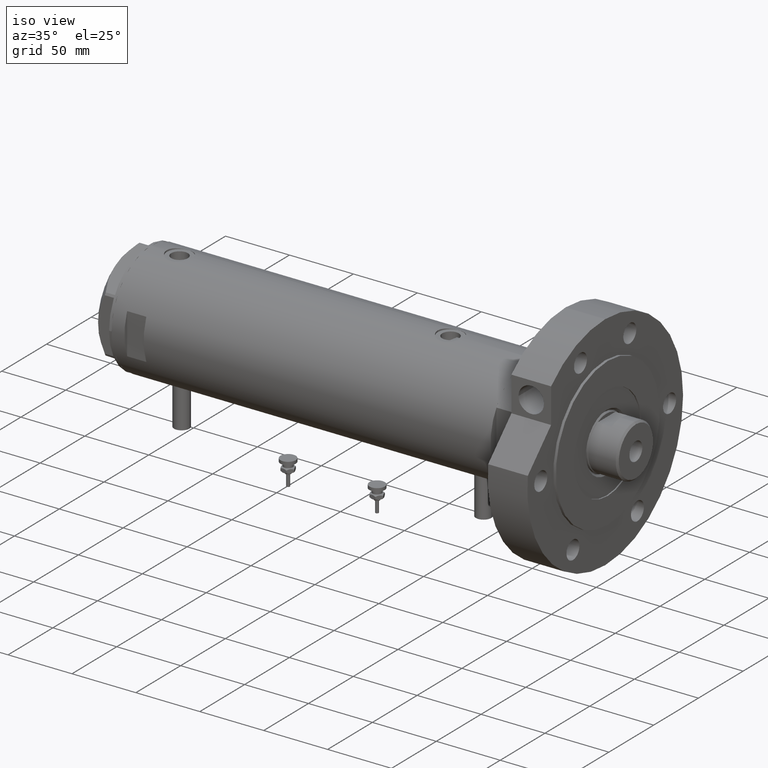
[diagram: clean part render]
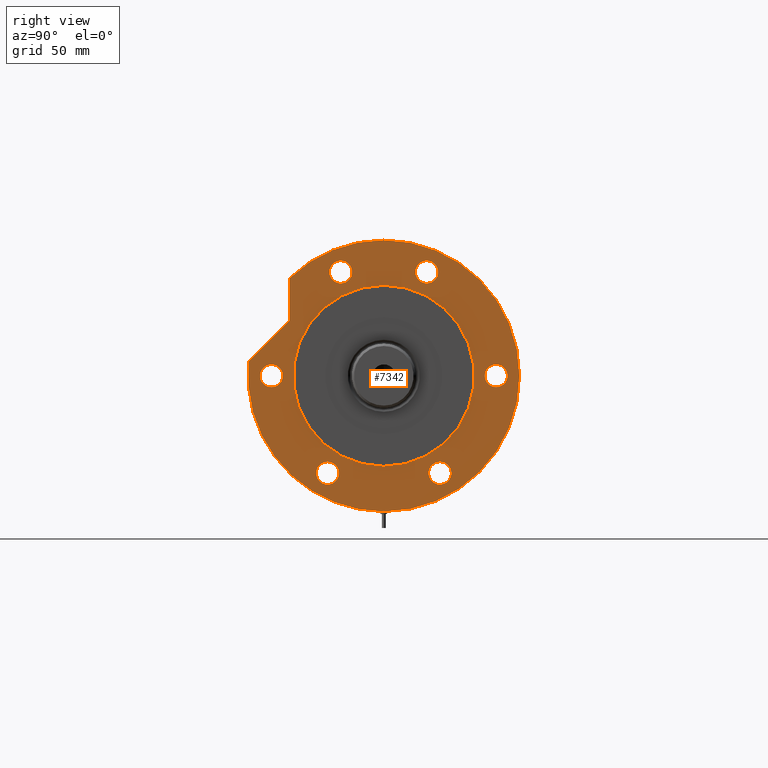
[diagram: tour spotlight — one face highlighted and labeled with its STEP entity id]
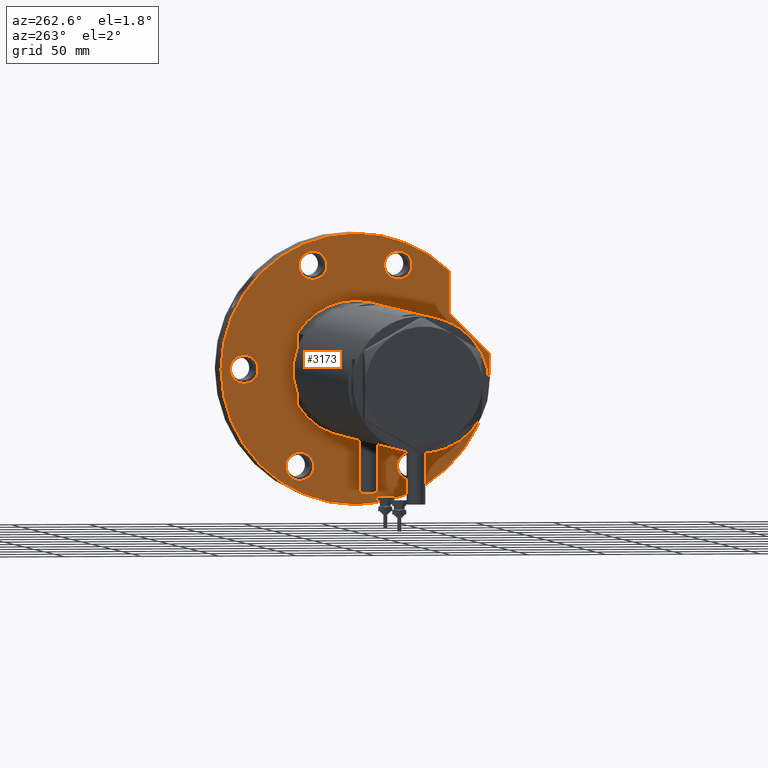
[diagram: tour spotlight — one face highlighted and labeled with its STEP entity id]
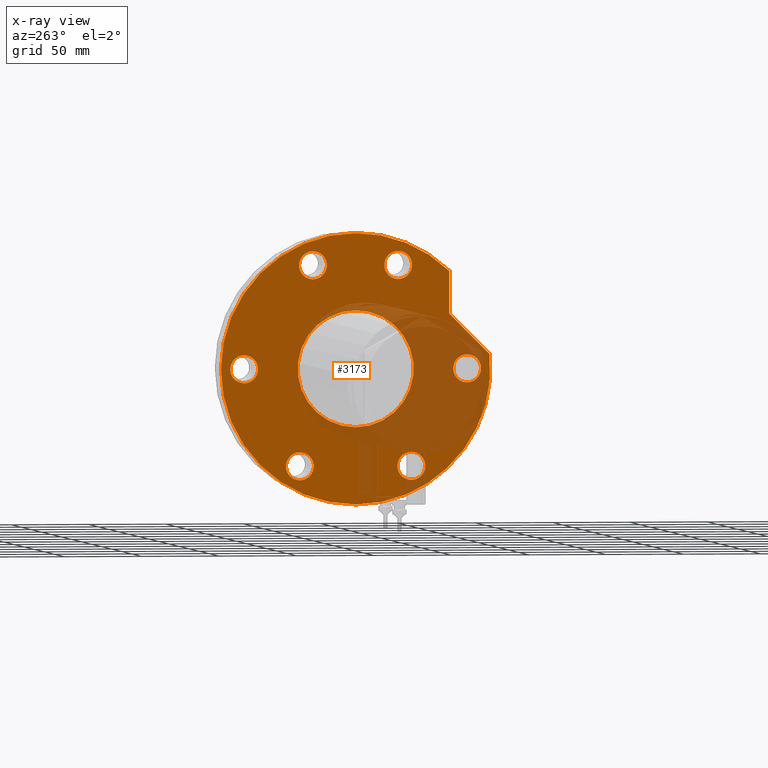
[diagram: x-ray of the same camera — body ghosted, this tour face saturated]
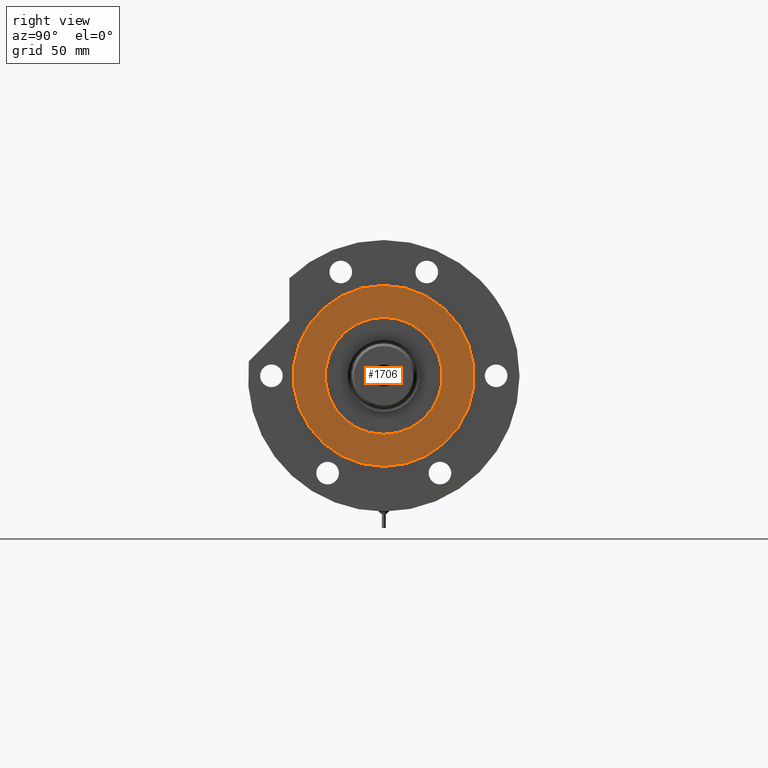
[diagram: tour spotlight — one face highlighted and labeled with its STEP entity id]
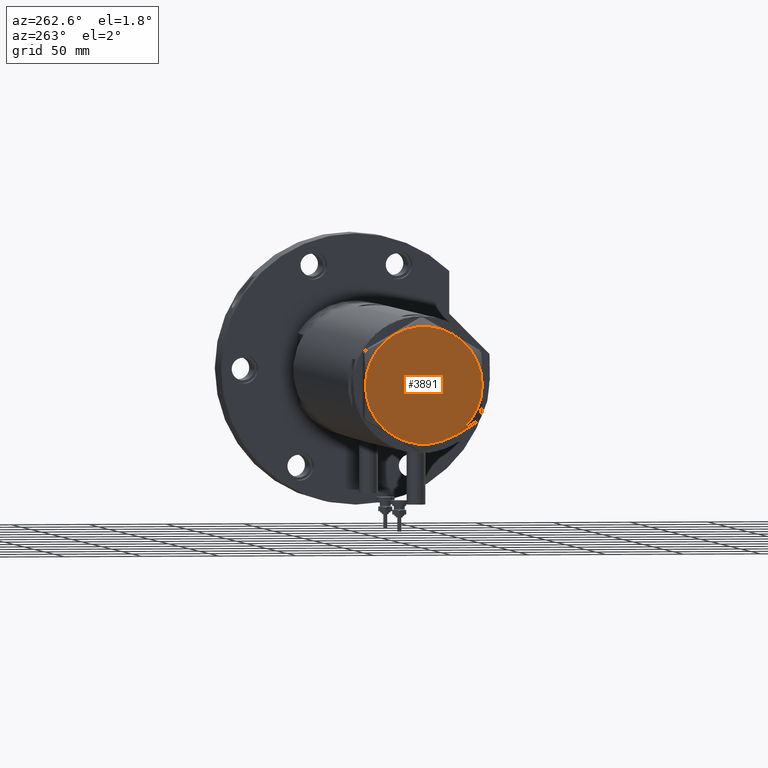
[diagram: tour spotlight — one face highlighted and labeled with its STEP entity id]
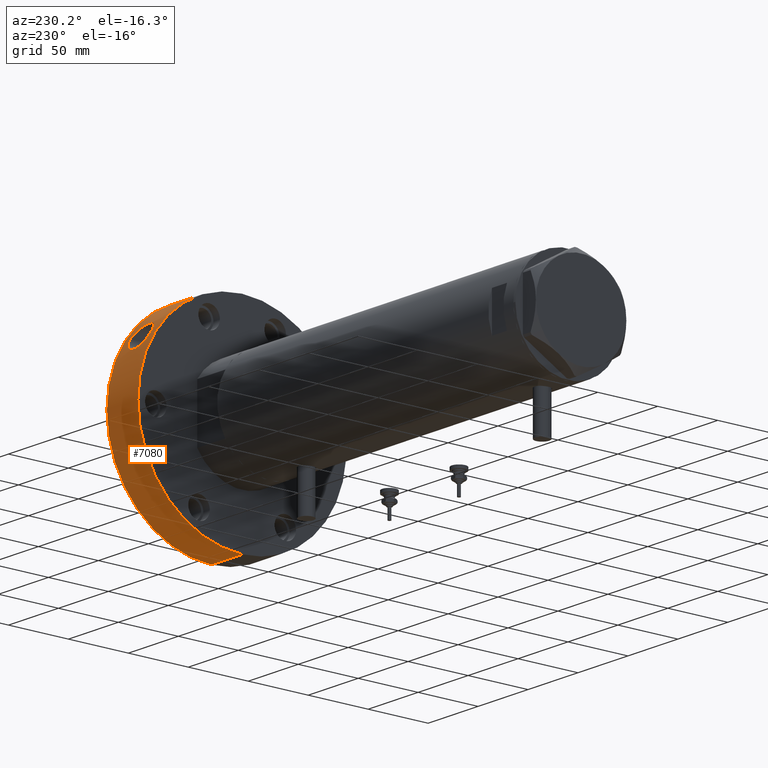
[diagram: tour spotlight — one face highlighted and labeled with its STEP entity id]
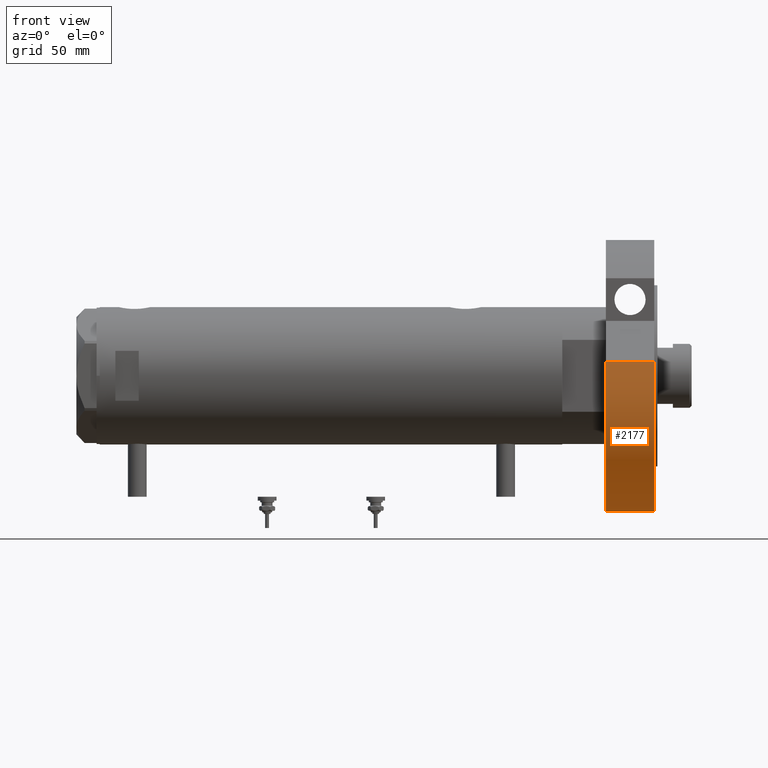
[diagram: tour spotlight — one face highlighted and labeled with its STEP entity id]
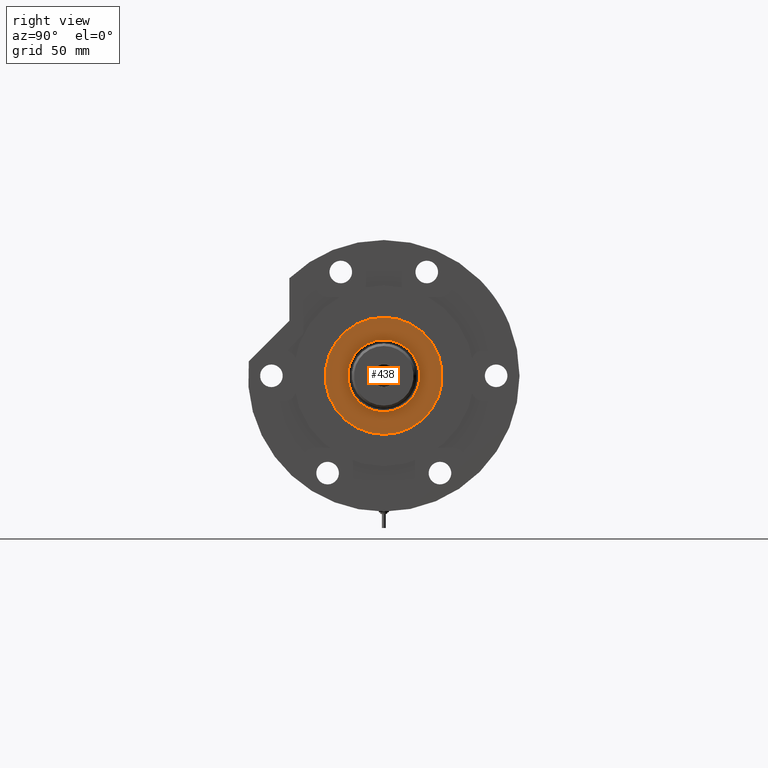
[diagram: tour spotlight — one face highlighted and labeled with its STEP entity id]
A machine part: a face-by-face anatomy tour. The part has 257 B-rep faces; the first image is the clean iso view, then the 7 largest visible faces are spotlighted one at a time (largest first), each with its STEP entity span.

Face 1 — right view, entity #7342. In plain terms, the highlighted planar face has unit normal (1, 0, -0).
Definition (entity closure, byte-faithful):
#61 = CIRCLE ( 'NONE', #7262, 7.249999999999992895 ) ;
#85 = VERTEX_POINT ( 'NONE', #3626 ) ;
#86 = AXIS2_PLACEMENT_3D ( 'NONE', #5097, #6315, #3256 ) ;
#98 = CIRCLE ( 'NONE', #6685, 7.249999999999992895 ) ;
#114 = EDGE_CURVE ( 'NONE', #6730, #7149, #1638, .T. ) ;
#257 = VERTEX_POINT ( 'NONE', #6458 ) ;
#262 = DIRECTION ( 'NONE',  ( 0.000000000000000000, 0.000000000000000000, 1.000000000000000000 ) ) ;
#320 = CIRCLE ( 'NONE', #5668, 7.250000000000001776 ) ;
#392 = DIRECTION ( 'NONE',  ( 0.000000000000000000, 0.000000000000000000, 1.000000000000000000 ) ) ;
#453 = CIRCLE ( 'NONE', #86, 7.250000000000001776 ) ;
#511 = CARTESIAN_POINT ( 'NONE',  ( 66.51932634081252615, 27.55320713028675073, 31.00000000000000000 ) ) ;
#532 = CARTESIAN_POINT ( 'NONE',  ( -69.60382907247965534, 35.99999999999985079, 31.00000000000000000 ) ) ;
#608 = FACE_BOUND ( 'NONE', #3384, .T. ) ;
#696 = CARTESIAN_POINT ( 'NONE',  ( -7.250000000000001776, -72.00000000000000000, 31.00000000000000000 ) ) ;
#728 = CARTESIAN_POINT ( 'NONE',  ( 73.76932634081251194, -27.55320713028675073, 31.00000000000000000 ) ) ;
#769 = ORIENTED_EDGE ( 'NONE', *, *, #947, .T. ) ;
#801 = CARTESIAN_POINT ( 'NONE',  ( 66.51932634081252615, -27.55320713028675073, 31.00000000000000000 ) ) ;
#802 = CARTESIAN_POINT ( 'NONE',  ( 66.51932634081252615, -27.55320713028675073, 31.00000000000000000 ) ) ;
#807 = VERTEX_POINT ( 'NONE', #4641 ) ;
#889 = EDGE_CURVE ( 'NONE', #4129, #4379, #6889, .T. ) ;
#947 = EDGE_CURVE ( 'NONE', #6187, #2894, #2862, .T. ) ;
#966 = ORIENTED_EDGE ( 'NONE', *, *, #2468, .F. ) ;
#985 = DIRECTION ( 'NONE',  ( 1.000000000000000000, 0.000000000000000000, 0.000000000000000000 ) ) ;
#989 = ORIENTED_EDGE ( 'NONE', *, *, #6163, .F. ) ;
#1018 = CARTESIAN_POINT ( 'NONE',  ( 7.250000000000001776, -72.00000000000000000, 31.00000000000000000 ) ) ;
#1213 = EDGE_CURVE ( 'NONE', #3399, #85, #320, .T. ) ;
#1238 = CARTESIAN_POINT ( 'NONE',  ( -55.10382907247942796, -36.00000000000027711, 31.00000000000000000 ) ) ;
#1521 = DIRECTION ( 'NONE',  ( 1.000000000000000000, 0.000000000000000000, 0.000000000000000000 ) ) ;
#1594 = CARTESIAN_POINT ( 'NONE',  ( 0.000000000000000000, 0.000000000000000000, 31.00000000000000000 ) ) ;
#1607 = CARTESIAN_POINT ( 'NONE',  ( 0.000000000000000000, 0.000000000000000000, 31.00000000000000000 ) ) ;
#1632 = CARTESIAN_POINT ( 'NONE',  ( 73.76932634081251194, 27.55320713028675073, 31.00000000000000000 ) ) ;
#1638 = CIRCLE ( 'NONE', #1761, 7.249999999999992895 ) ;
#1745 = FACE_BOUND ( 'NONE', #6940, .T. ) ;
#1756 = CARTESIAN_POINT ( 'NONE',  ( -69.60382907247941375, -36.00000000000027711, 31.00000000000000000 ) ) ;
#1761 = AXIS2_PLACEMENT_3D ( 'NONE', #1993, #7200, #4270 ) ;
#1814 = CARTESIAN_POINT ( 'NONE',  ( -62.35382907247942086, -36.00000000000027711, 31.00000000000000000 ) ) ;
#1857 = CARTESIAN_POINT ( 'NONE',  ( 0.000000000000000000, 0.000000000000000000, 31.00000000000000000 ) ) ;
#1878 = DIRECTION ( 'NONE',  ( 0.000000000000000000, 0.000000000000000000, 1.000000000000000000 ) ) ;
#1907 = VECTOR ( 'NONE', #6866, 999.9999999999998863 ) ;
#1946 = VERTEX_POINT ( 'NONE', #6561 ) ;
#1993 = CARTESIAN_POINT ( 'NONE',  ( 66.51932634081252615, 27.55320713028675073, 31.00000000000000000 ) ) ;
#2079 = EDGE_CURVE ( 'NONE', #257, #2894, #7413, .T. ) ;
#2092 = ORIENTED_EDGE ( 'NONE', *, *, #3343, .F. ) ;
#2142 = CARTESIAN_POINT ( 'NONE',  ( -87.00000000000000000, 0.000000000000000000, 31.00000000000000000 ) ) ;
#2150 = EDGE_CURVE ( 'NONE', #807, #257, #3875, .T. ) ;
#2152 = CIRCLE ( 'NONE', #5815, 7.250000000000001776 ) ;
#2381 = CARTESIAN_POINT ( 'NONE',  ( -55.10382907247964823, 35.99999999999985079, 31.00000000000000000 ) ) ;
#2468 = EDGE_CURVE ( 'NONE', #7247, #5696, #2152, .T. ) ;
#2538 = CIRCLE ( 'NONE', #6429, 58.00000000000000000 ) ;
#2567 = CARTESIAN_POINT ( 'NONE',  ( 59.26932634081251905, 27.55320713028675073, 31.00000000000000000 ) ) ;
#2582 = EDGE_CURVE ( 'NONE', #5696, #7247, #453, .T. ) ;
#2583 = DIRECTION ( 'NONE',  ( 0.000000000000000000, 0.000000000000000000, 1.000000000000000000 ) ) ;
#2714 = AXIS2_PLACEMENT_3D ( 'NONE', #511, #6385, #2830 ) ;
#2724 = AXIS2_PLACEMENT_3D ( 'NONE', #801, #7141, #3790 ) ;
#2733 = ORIENTED_EDGE ( 'NONE', *, *, #6208, .T. ) ;
#2756 = VECTOR ( 'NONE', #3907, 1000.000000000000000 ) ;
#2826 = DIRECTION ( 'NONE',  ( 1.000000000000000000, 0.000000000000000000, 0.000000000000000000 ) ) ;
#2830 = DIRECTION ( 'NONE',  ( 1.000000000000000000, 0.000000000000000000, 0.000000000000000000 ) ) ;
#2862 = CIRCLE ( 'NONE', #3225, 87.00000000000000000 ) ;
#2869 = DIRECTION ( 'NONE',  ( 1.000000000000000000, 0.000000000000000000, 0.000000000000000000 ) ) ;
#2882 = ORIENTED_EDGE ( 'NONE', *, *, #2150, .F. ) ;
#2888 = CIRCLE ( 'NONE', #3855, 87.00000000000000000 ) ;
#2894 = VERTEX_POINT ( 'NONE', #3517 ) ;
#2909 = CARTESIAN_POINT ( 'NONE',  ( -62.35382907247965534, 35.99999999999985079, 31.00000000000000000 ) ) ;
#2923 = CARTESIAN_POINT ( 'NONE',  ( -62.35382907247942086, -36.00000000000027711, 31.00000000000000000 ) ) ;
#2970 = CIRCLE ( 'NONE', #6265, 7.250000000000006217 ) ;
#2996 = FACE_BOUND ( 'NONE', #3345, .T. ) ;
#3044 = ORIENTED_EDGE ( 'NONE', *, *, #5124, .F. ) ;
#3067 = CARTESIAN_POINT ( 'NONE',  ( 0.000000000000000000, -72.00000000000000000, 31.00000000000000000 ) ) ;
#3079 = CIRCLE ( 'NONE', #2724, 7.249999999999992895 ) ;
#3089 = CARTESIAN_POINT ( 'NONE',  ( 7.250000000000001776, 72.00000000000000000, 31.00000000000000000 ) ) ;
#3154 = CARTESIAN_POINT ( 'NONE',  ( 0.000000000000000000, 0.000000000000000000, 31.00000000000000000 ) ) ;
#3225 = AXIS2_PLACEMENT_3D ( 'NONE', #1594, #6246, #1521 ) ;
#3256 = DIRECTION ( 'NONE',  ( 1.000000000000000000, 0.000000000000000000, 0.000000000000000000 ) ) ;
#3260 = ORIENTED_EDGE ( 'NONE', *, *, #6707, .F. ) ;
#3309 = DIRECTION ( 'NONE',  ( 1.000000000000000000, 0.000000000000000000, 0.000000000000000000 ) ) ;
#3332 = EDGE_LOOP ( 'NONE', ( #2092, #5861 ) ) ;
#3337 = AXIS2_PLACEMENT_3D ( 'NONE', #802, #4795, #5530 ) ;
#3343 = EDGE_CURVE ( 'NONE', #7060, #4911, #98, .T. ) ;
#3345 = EDGE_LOOP ( 'NONE', ( #7354, #6756 ) ) ;
#3384 = EDGE_LOOP ( 'NONE', ( #7525, #3044 ) ) ;
#3399 = VERTEX_POINT ( 'NONE', #3089 ) ;
#3412 = ORIENTED_EDGE ( 'NONE', *, *, #7196, .F. ) ;
#3493 = FACE_OUTER_BOUND ( 'NONE', #5294, .T. ) ;
#3517 = CARTESIAN_POINT ( 'NONE',  ( 62.54236590573034249, 60.47687547247904405, 31.00000000000000000 ) ) ;
#3583 = EDGE_CURVE ( 'NONE', #5806, #1946, #2538, .T. ) ;
#3600 = PLANE ( 'NONE',  #4064 ) ;
#3626 = CARTESIAN_POINT ( 'NONE',  ( -7.250000000000001776, 72.00000000000000000, 31.00000000000000000 ) ) ;
#3643 = CARTESIAN_POINT ( 'NONE',  ( 87.00000000000000000, 1.065442715258197209E-14, 31.00000000000000000 ) ) ;
#3717 = CARTESIAN_POINT ( 'NONE',  ( 0.000000000000000000, 72.00000000000000000, 31.00000000000000000 ) ) ;
#3790 = DIRECTION ( 'NONE',  ( 1.000000000000000000, 0.000000000000000000, 0.000000000000000000 ) ) ;
#3855 = AXIS2_PLACEMENT_3D ( 'NONE', #7443, #4596, #7020 ) ;
#3875 = LINE ( 'NONE', #6287, #1907 ) ;
#3907 = DIRECTION ( 'NONE',  ( 1.000000000000000000, 0.000000000000000000, -0.000000000000000000 ) ) ;
#3944 = CARTESIAN_POINT ( 'NONE',  ( -62.35382907247965534, 35.99999999999985079, 31.00000000000000000 ) ) ;
#4015 = DIRECTION ( 'NONE',  ( 0.000000000000000000, 0.000000000000000000, 1.000000000000000000 ) ) ;
#4057 = FACE_BOUND ( 'NONE', #4169, .T. ) ;
#4064 = AXIS2_PLACEMENT_3D ( 'NONE', #1857, #4717, #7063 ) ;
#4129 = VERTEX_POINT ( 'NONE', #4627 ) ;
#4169 = EDGE_LOOP ( 'NONE', ( #3412, #7016 ) ) ;
#4193 = DIRECTION ( 'NONE',  ( 1.000000000000000000, 0.000000000000000000, 0.000000000000000000 ) ) ;
#4270 = DIRECTION ( 'NONE',  ( 1.000000000000000000, 0.000000000000000000, 0.000000000000000000 ) ) ;
#4311 = AXIS2_PLACEMENT_3D ( 'NONE', #2909, #5731, #2869 ) ;
#4379 = VERTEX_POINT ( 'NONE', #728 ) ;
#4596 = DIRECTION ( 'NONE',  ( 0.000000000000000000, 0.000000000000000000, 1.000000000000000000 ) ) ;
#4627 = CARTESIAN_POINT ( 'NONE',  ( 59.26932634081251905, -27.55320713028675073, 31.00000000000000000 ) ) ;
#4641 = CARTESIAN_POINT ( 'NONE',  ( 9.196694222441541555, 86.51254715576759224, 31.00000000000000000 ) ) ;
#4717 = DIRECTION ( 'NONE',  ( 0.000000000000000000, 0.000000000000000000, 1.000000000000000000 ) ) ;
#4741 = EDGE_CURVE ( 'NONE', #6869, #6187, #2888, .T. ) ;
#4795 = DIRECTION ( 'NONE',  ( 0.000000000000000000, 0.000000000000000000, 1.000000000000000000 ) ) ;
#4831 = DIRECTION ( 'NONE',  ( 1.000000000000000000, 0.000000000000000000, 0.000000000000000000 ) ) ;
#4832 = DIRECTION ( 'NONE',  ( 1.000000000000000000, 0.000000000000000000, 0.000000000000000000 ) ) ;
#4849 = EDGE_LOOP ( 'NONE', ( #6157, #989 ) ) ;
#4911 = VERTEX_POINT ( 'NONE', #1238 ) ;
#5043 = CIRCLE ( 'NONE', #4311, 7.250000000000006217 ) ;
#5097 = CARTESIAN_POINT ( 'NONE',  ( 0.000000000000000000, -72.00000000000000000, 31.00000000000000000 ) ) ;
#5124 = EDGE_CURVE ( 'NONE', #7149, #6730, #5999, .T. ) ;
#5207 = ORIENTED_EDGE ( 'NONE', *, *, #2582, .F. ) ;
#5216 = FACE_BOUND ( 'NONE', #4849, .T. ) ;
#5248 = DIRECTION ( 'NONE',  ( 0.000000000000000000, 0.000000000000000000, 1.000000000000000000 ) ) ;
#5275 = VERTEX_POINT ( 'NONE', #2381 ) ;
#5294 = EDGE_LOOP ( 'NONE', ( #7027, #2882, #2733, #7472, #769 ) ) ;
#5365 = FACE_BOUND ( 'NONE', #7510, .T. ) ;
#5404 = CIRCLE ( 'NONE', #5528, 58.00000000000000000 ) ;
#5528 = AXIS2_PLACEMENT_3D ( 'NONE', #6916, #392, #6189 ) ;
#5530 = DIRECTION ( 'NONE',  ( 1.000000000000000000, 0.000000000000000000, 0.000000000000000000 ) ) ;
#5635 = DIRECTION ( 'NONE',  ( 1.000000000000000000, 0.000000000000000000, 0.000000000000000000 ) ) ;
#5651 = AXIS2_PLACEMENT_3D ( 'NONE', #3154, #7264, #5635 ) ;
#5668 = AXIS2_PLACEMENT_3D ( 'NONE', #3717, #2583, #4831 ) ;
#5696 = VERTEX_POINT ( 'NONE', #696 ) ;
#5731 = DIRECTION ( 'NONE',  ( 0.000000000000000000, 0.000000000000000000, 1.000000000000000000 ) ) ;
#5806 = VERTEX_POINT ( 'NONE', #6038 ) ;
#5815 = AXIS2_PLACEMENT_3D ( 'NONE', #3067, #262, #4832 ) ;
#5816 = DIRECTION ( 'NONE',  ( 0.000000000000000000, 0.000000000000000000, 1.000000000000000000 ) ) ;
#5861 = ORIENTED_EDGE ( 'NONE', *, *, #7374, .F. ) ;
#5867 = DIRECTION ( 'NONE',  ( 1.000000000000000000, 0.000000000000000000, 0.000000000000000000 ) ) ;
#5889 = EDGE_CURVE ( 'NONE', #1946, #5806, #5404, .T. ) ;
#5999 = CIRCLE ( 'NONE', #2714, 7.249999999999992895 ) ;
#6038 = CARTESIAN_POINT ( 'NONE',  ( 58.00000000000000000, 7.102951435054648059E-15, 31.00000000000000000 ) ) ;
#6157 = ORIENTED_EDGE ( 'NONE', *, *, #889, .F. ) ;
#6163 = EDGE_CURVE ( 'NONE', #4379, #4129, #3079, .T. ) ;
#6187 = VERTEX_POINT ( 'NONE', #3643 ) ;
#6189 = DIRECTION ( 'NONE',  ( 1.000000000000000000, 0.000000000000000000, 0.000000000000000000 ) ) ;
#6208 = EDGE_CURVE ( 'NONE', #807, #6869, #6999, .T. ) ;
#6246 = DIRECTION ( 'NONE',  ( 0.000000000000000000, 0.000000000000000000, 1.000000000000000000 ) ) ;
#6264 = FACE_BOUND ( 'NONE', #3332, .T. ) ;
#6265 = AXIS2_PLACEMENT_3D ( 'NONE', #3944, #4015, #985 ) ;
#6287 = CARTESIAN_POINT ( 'NONE',  ( 47.85462068910451450, 47.85462068910500477, 31.00000000000000000 ) ) ;
#6315 = DIRECTION ( 'NONE',  ( 0.000000000000000000, 0.000000000000000000, 1.000000000000000000 ) ) ;
#6385 = DIRECTION ( 'NONE',  ( 0.000000000000000000, 0.000000000000000000, 1.000000000000000000 ) ) ;
#6429 = AXIS2_PLACEMENT_3D ( 'NONE', #1607, #6729, #3309 ) ;
#6458 = CARTESIAN_POINT ( 'NONE',  ( 35.23236590573035443, 60.47687547247904405, 31.00000000000000000 ) ) ;
#6531 = EDGE_CURVE ( 'NONE', #5275, #6868, #5043, .T. ) ;
#6561 = CARTESIAN_POINT ( 'NONE',  ( -58.00000000000000000, 0.000000000000000000, 31.00000000000000000 ) ) ;
#6571 = CARTESIAN_POINT ( 'NONE',  ( 0.000000000000000000, 72.00000000000000000, 31.00000000000000000 ) ) ;
#6685 = AXIS2_PLACEMENT_3D ( 'NONE', #1814, #5816, #2826 ) ;
#6707 = EDGE_CURVE ( 'NONE', #85, #3399, #6877, .T. ) ;
#6729 = DIRECTION ( 'NONE',  ( 0.000000000000000000, 0.000000000000000000, 1.000000000000000000 ) ) ;
#6730 = VERTEX_POINT ( 'NONE', #2567 ) ;
#6753 = CARTESIAN_POINT ( 'NONE',  ( 0.000000000000000000, 60.47687547247904405, 31.00000000000000000 ) ) ;
#6756 = ORIENTED_EDGE ( 'NONE', *, *, #3583, .F. ) ;
#6866 = DIRECTION ( 'NONE',  ( 0.7071067811865511255, -0.7071067811865440200, 0.000000000000000000 ) ) ;
#6868 = VERTEX_POINT ( 'NONE', #532 ) ;
#6869 = VERTEX_POINT ( 'NONE', #2142 ) ;
#6877 = CIRCLE ( 'NONE', #7252, 7.250000000000001776 ) ;
#6889 = CIRCLE ( 'NONE', #3337, 7.249999999999992895 ) ;
#6916 = CARTESIAN_POINT ( 'NONE',  ( 0.000000000000000000, 0.000000000000000000, 31.00000000000000000 ) ) ;
#6940 = EDGE_LOOP ( 'NONE', ( #5207, #966 ) ) ;
#6966 = ORIENTED_EDGE ( 'NONE', *, *, #1213, .F. ) ;
#6999 = CIRCLE ( 'NONE', #5651, 87.00000000000000000 ) ;
#7016 = ORIENTED_EDGE ( 'NONE', *, *, #6531, .F. ) ;
#7020 = DIRECTION ( 'NONE',  ( 1.000000000000000000, 0.000000000000000000, 0.000000000000000000 ) ) ;
#7027 = ORIENTED_EDGE ( 'NONE', *, *, #2079, .F. ) ;
#7060 = VERTEX_POINT ( 'NONE', #1756 ) ;
#7063 = DIRECTION ( 'NONE',  ( 1.000000000000000000, 0.000000000000000000, -0.000000000000000000 ) ) ;
#7141 = DIRECTION ( 'NONE',  ( 0.000000000000000000, 0.000000000000000000, 1.000000000000000000 ) ) ;
#7149 = VERTEX_POINT ( 'NONE', #1632 ) ;
#7196 = EDGE_CURVE ( 'NONE', #6868, #5275, #2970, .T. ) ;
#7200 = DIRECTION ( 'NONE',  ( 0.000000000000000000, 0.000000000000000000, 1.000000000000000000 ) ) ;
#7247 = VERTEX_POINT ( 'NONE', #1018 ) ;
#7252 = AXIS2_PLACEMENT_3D ( 'NONE', #6571, #1878, #4193 ) ;
#7262 = AXIS2_PLACEMENT_3D ( 'NONE', #2923, #5248, #5867 ) ;
#7264 = DIRECTION ( 'NONE',  ( 0.000000000000000000, 0.000000000000000000, 1.000000000000000000 ) ) ;
#7342 = ADVANCED_FACE ( 'NONE', ( #5365, #608, #5216, #1745, #6264, #4057, #3493, #2996 ), #3600, .T. ) ;
#7354 = ORIENTED_EDGE ( 'NONE', *, *, #5889, .F. ) ;
#7374 = EDGE_CURVE ( 'NONE', #4911, #7060, #61, .T. ) ;
#7413 = LINE ( 'NONE', #6753, #2756 ) ;
#7443 = CARTESIAN_POINT ( 'NONE',  ( 0.000000000000000000, 0.000000000000000000, 31.00000000000000000 ) ) ;
#7472 = ORIENTED_EDGE ( 'NONE', *, *, #4741, .T. ) ;
#7510 = EDGE_LOOP ( 'NONE', ( #3260, #6966 ) ) ;
#7525 = ORIENTED_EDGE ( 'NONE', *, *, #114, .F. ) ;

Face 2 — auxiliary view, entity #3173. An x-ray twin of the same camera follows (body ghosted, this face saturated) — the face is partly hidden behind the body. In plain terms, the highlighted planar face has unit normal (1, 0, -0).
Definition (entity closure, byte-faithful):
#35 = AXIS2_PLACEMENT_3D ( 'NONE', #4467, #3015, #6488 ) ;
#51 = CIRCLE ( 'NONE', #4783, 37.50000000000000711 ) ;
#146 = VERTEX_POINT ( 'NONE', #4972 ) ;
#153 = VERTEX_POINT ( 'NONE', #1497 ) ;
#184 = CIRCLE ( 'NONE', #6392, 9.000000000000001776 ) ;
#302 = ORIENTED_EDGE ( 'NONE', *, *, #641, .F. ) ;
#313 = AXIS2_PLACEMENT_3D ( 'NONE', #3533, #2403, #6479 ) ;
#347 = VERTEX_POINT ( 'NONE', #2482 ) ;
#558 = ORIENTED_EDGE ( 'NONE', *, *, #7138, .F. ) ;
#566 = CARTESIAN_POINT ( 'NONE',  ( 0.000000000000000000, 0.000000000000000000, 0.000000000000000000 ) ) ;
#578 = DIRECTION ( 'NONE',  ( -1.000000000000000000, 0.000000000000000000, 0.000000000000000000 ) ) ;
#602 = EDGE_LOOP ( 'NONE', ( #3519, #6651 ) ) ;
#633 = EDGE_CURVE ( 'NONE', #4381, #7272, #5782, .T. ) ;
#641 = EDGE_CURVE ( 'NONE', #1846, #4754, #4679, .T. ) ;
#686 = DIRECTION ( 'NONE',  ( 0.000000000000000000, 0.000000000000000000, -1.000000000000000000 ) ) ;
#701 = VERTEX_POINT ( 'NONE', #5225 ) ;
#742 = EDGE_CURVE ( 'NONE', #7272, #4381, #7139, .T. ) ;
#750 = EDGE_CURVE ( 'NONE', #4401, #146, #184, .T. ) ;
#763 = DIRECTION ( 'NONE',  ( -1.000000000000000000, 0.000000000000000000, 0.000000000000000000 ) ) ;
#789 = CIRCLE ( 'NONE', #5911, 8.999999999999998224 ) ;
#865 = EDGE_CURVE ( 'NONE', #2487, #5210, #789, .T. ) ;
#871 = DIRECTION ( 'NONE',  ( -1.000000000000000000, 0.000000000000000000, 0.000000000000000000 ) ) ;
#1012 = EDGE_CURVE ( 'NONE', #3987, #153, #7410, .T. ) ;
#1145 = CARTESIAN_POINT ( 'NONE',  ( -62.35382907247942086, -36.00000000000027711, 0.000000000000000000 ) ) ;
#1198 = EDGE_CURVE ( 'NONE', #3789, #4566, #4817, .T. ) ;
#1277 = ORIENTED_EDGE ( 'NONE', *, *, #1012, .T. ) ;
#1334 = DIRECTION ( 'NONE',  ( 0.000000000000000000, 0.000000000000000000, -1.000000000000000000 ) ) ;
#1401 = AXIS2_PLACEMENT_3D ( 'NONE', #7531, #4175, #6518 ) ;
#1431 = CIRCLE ( 'NONE', #2654, 8.999999999999998224 ) ;
#1441 = VECTOR ( 'NONE', #2881, 999.9999999999998863 ) ;
#1443 = CARTESIAN_POINT ( 'NONE',  ( 0.000000000000000000, 72.00000000000000000, 0.000000000000000000 ) ) ;
#1452 = EDGE_LOOP ( 'NONE', ( #5710, #1277, #2112, #3520, #558 ) ) ;
#1497 = CARTESIAN_POINT ( 'NONE',  ( 62.54236590573034249, 60.47687547247904405, 0.000000000000000000 ) ) ;
#1504 = PLANE ( 'NONE',  #6304 ) ;
#1610 = DIRECTION ( 'NONE',  ( 0.000000000000000000, 0.000000000000000000, -1.000000000000000000 ) ) ;
#1614 = FACE_BOUND ( 'NONE', #5720, .T. ) ;
#1641 = CARTESIAN_POINT ( 'NONE',  ( -62.35382907247942086, -36.00000000000027711, 0.000000000000000000 ) ) ;
#1678 = DIRECTION ( 'NONE',  ( 0.000000000000000000, 0.000000000000000000, -1.000000000000000000 ) ) ;
#1714 = DIRECTION ( 'NONE',  ( 0.000000000000000000, 0.000000000000000000, -1.000000000000000000 ) ) ;
#1723 = DIRECTION ( 'NONE',  ( 0.000000000000000000, 0.000000000000000000, -1.000000000000000000 ) ) ;
#1751 = AXIS2_PLACEMENT_3D ( 'NONE', #1641, #1678, #5612 ) ;
#1846 = VERTEX_POINT ( 'NONE', #6258 ) ;
#1914 = CARTESIAN_POINT ( 'NONE',  ( 0.000000000000000000, -72.00000000000000000, 0.000000000000000000 ) ) ;
#1943 = CARTESIAN_POINT ( 'NONE',  ( 0.000000000000000000, 72.00000000000000000, 0.000000000000000000 ) ) ;
#2029 = AXIS2_PLACEMENT_3D ( 'NONE', #3381, #2847, #2284 ) ;
#2036 = CIRCLE ( 'NONE', #2999, 87.00000000000000000 ) ;
#2070 = CARTESIAN_POINT ( 'NONE',  ( -8.999999999999998224, -72.00000000000000000, 0.000000000000000000 ) ) ;
#2077 = ORIENTED_EDGE ( 'NONE', *, *, #5591, .F. ) ;
#2093 = EDGE_CURVE ( 'NONE', #146, #4401, #7032, .T. ) ;
#2112 = ORIENTED_EDGE ( 'NONE', *, *, #2656, .F. ) ;
#2169 = CARTESIAN_POINT ( 'NONE',  ( 35.23236590573035443, 60.47687547247904405, 0.000000000000000000 ) ) ;
#2196 = EDGE_LOOP ( 'NONE', ( #302, #2077 ) ) ;
#2281 = CIRCLE ( 'NONE', #2524, 9.000000000000001776 ) ;
#2284 = DIRECTION ( 'NONE',  ( -1.000000000000000000, 0.000000000000000000, 0.000000000000000000 ) ) ;
#2291 = CARTESIAN_POINT ( 'NONE',  ( 66.51932634081252615, -27.55320713028675073, 0.000000000000000000 ) ) ;
#2299 = DIRECTION ( 'NONE',  ( -1.000000000000000000, 0.000000000000000000, 0.000000000000000000 ) ) ;
#2398 = VERTEX_POINT ( 'NONE', #7132 ) ;
#2403 = DIRECTION ( 'NONE',  ( 0.000000000000000000, 0.000000000000000000, -1.000000000000000000 ) ) ;
#2409 = EDGE_LOOP ( 'NONE', ( #5877, #3192 ) ) ;
#2444 = CARTESIAN_POINT ( 'NONE',  ( 75.51932634081252615, -27.55320713028675073, 0.000000000000000000 ) ) ;
#2456 = LINE ( 'NONE', #4708, #1441 ) ;
#2482 = CARTESIAN_POINT ( 'NONE',  ( -71.35382907247941375, -36.00000000000027711, 0.000000000000000000 ) ) ;
#2487 = VERTEX_POINT ( 'NONE', #6631 ) ;
#2524 = AXIS2_PLACEMENT_3D ( 'NONE', #1145, #2938, #4764 ) ;
#2535 = EDGE_CURVE ( 'NONE', #5210, #2487, #7039, .T. ) ;
#2619 = VERTEX_POINT ( 'NONE', #5015 ) ;
#2654 = AXIS2_PLACEMENT_3D ( 'NONE', #1914, #1334, #763 ) ;
#2656 = EDGE_CURVE ( 'NONE', #701, #153, #2036, .T. ) ;
#2657 = CARTESIAN_POINT ( 'NONE',  ( 0.000000000000000000, 0.000000000000000000, 0.000000000000000000 ) ) ;
#2718 = AXIS2_PLACEMENT_3D ( 'NONE', #7430, #1723, #2299 ) ;
#2793 = FACE_BOUND ( 'NONE', #6812, .T. ) ;
#2847 = DIRECTION ( 'NONE',  ( 0.000000000000000000, 0.000000000000000000, -1.000000000000000000 ) ) ;
#2881 = DIRECTION ( 'NONE',  ( 0.7071067811865511255, -0.7071067811865440200, -0.000000000000000000 ) ) ;
#2891 = CARTESIAN_POINT ( 'NONE',  ( 75.51932634081252615, 27.55320713028675073, 0.000000000000000000 ) ) ;
#2938 = DIRECTION ( 'NONE',  ( 0.000000000000000000, 0.000000000000000000, -1.000000000000000000 ) ) ;
#2984 = CARTESIAN_POINT ( 'NONE',  ( -8.999999999999998224, 72.00000000000000000, 0.000000000000000000 ) ) ;
#2999 = AXIS2_PLACEMENT_3D ( 'NONE', #3828, #7401, #3370 ) ;
#3011 = EDGE_LOOP ( 'NONE', ( #4803, #3767 ) ) ;
#3015 = DIRECTION ( 'NONE',  ( 0.000000000000000000, 0.000000000000000000, 1.000000000000000000 ) ) ;
#3117 = AXIS2_PLACEMENT_3D ( 'NONE', #1443, #7180, #6016 ) ;
#3172 = DIRECTION ( 'NONE',  ( 0.000000000000000000, 0.000000000000000000, 1.000000000000000000 ) ) ;
#3173 = ADVANCED_FACE ( 'NONE', ( #5009, #2793, #7353, #1614, #5122, #6849, #6817, #3281 ), #1504, .F. ) ;
#3192 = ORIENTED_EDGE ( 'NONE', *, *, #750, .F. ) ;
#3261 = VERTEX_POINT ( 'NONE', #6380 ) ;
#3281 = FACE_OUTER_BOUND ( 'NONE', #1452, .T. ) ;
#3370 = DIRECTION ( 'NONE',  ( 1.000000000000000000, 0.000000000000000000, 0.000000000000000000 ) ) ;
#3381 = CARTESIAN_POINT ( 'NONE',  ( 66.51932634081252615, -27.55320713028675073, 0.000000000000000000 ) ) ;
#3512 = ORIENTED_EDGE ( 'NONE', *, *, #4523, .F. ) ;
#3519 = ORIENTED_EDGE ( 'NONE', *, *, #6406, .T. ) ;
#3520 = ORIENTED_EDGE ( 'NONE', *, *, #5644, .F. ) ;
#3533 = CARTESIAN_POINT ( 'NONE',  ( 66.51932634081252615, 27.55320713028675073, 0.000000000000000000 ) ) ;
#3562 = VERTEX_POINT ( 'NONE', #2070 ) ;
#3572 = AXIS2_PLACEMENT_3D ( 'NONE', #4448, #3874, #6215 ) ;
#3680 = CIRCLE ( 'NONE', #35, 87.00000000000000000 ) ;
#3767 = ORIENTED_EDGE ( 'NONE', *, *, #865, .F. ) ;
#3789 = VERTEX_POINT ( 'NONE', #4399 ) ;
#3828 = CARTESIAN_POINT ( 'NONE',  ( 0.000000000000000000, 0.000000000000000000, 0.000000000000000000 ) ) ;
#3874 = DIRECTION ( 'NONE',  ( 0.000000000000000000, 0.000000000000000000, 1.000000000000000000 ) ) ;
#3886 = ORIENTED_EDGE ( 'NONE', *, *, #5915, .F. ) ;
#3921 = DIRECTION ( 'NONE',  ( -1.000000000000000000, 0.000000000000000000, 0.000000000000000000 ) ) ;
#3924 = DIRECTION ( 'NONE',  ( 1.000000000000000000, 0.000000000000000000, -0.000000000000000000 ) ) ;
#3987 = VERTEX_POINT ( 'NONE', #6938 ) ;
#4023 = DIRECTION ( 'NONE',  ( -1.000000000000000000, 0.000000000000000000, 0.000000000000000000 ) ) ;
#4175 = DIRECTION ( 'NONE',  ( 0.000000000000000000, 0.000000000000000000, -1.000000000000000000 ) ) ;
#4182 = EDGE_CURVE ( 'NONE', #3261, #3987, #2456, .T. ) ;
#4217 = ORIENTED_EDGE ( 'NONE', *, *, #4408, .F. ) ;
#4257 = DIRECTION ( 'NONE',  ( 0.000000000000000000, 0.000000000000000000, -1.000000000000000000 ) ) ;
#4381 = VERTEX_POINT ( 'NONE', #6995 ) ;
#4399 = CARTESIAN_POINT ( 'NONE',  ( -37.50000000000000711, 4.592425496802575156E-15, 0.000000000000000000 ) ) ;
#4401 = VERTEX_POINT ( 'NONE', #2444 ) ;
#4408 = EDGE_CURVE ( 'NONE', #347, #2398, #2281, .T. ) ;
#4448 = CARTESIAN_POINT ( 'NONE',  ( 0.000000000000000000, 0.000000000000000000, 0.000000000000000000 ) ) ;
#4467 = CARTESIAN_POINT ( 'NONE',  ( 0.000000000000000000, 0.000000000000000000, 0.000000000000000000 ) ) ;
#4484 = DIRECTION ( 'NONE',  ( 1.000000000000000000, 0.000000000000000000, 0.000000000000000000 ) ) ;
#4500 = CARTESIAN_POINT ( 'NONE',  ( -62.35382907247965534, 35.99999999999985079, 0.000000000000000000 ) ) ;
#4523 = EDGE_CURVE ( 'NONE', #3562, #7535, #1431, .T. ) ;
#4564 = VECTOR ( 'NONE', #4484, 1000.000000000000000 ) ;
#4566 = VERTEX_POINT ( 'NONE', #4884 ) ;
#4606 = CARTESIAN_POINT ( 'NONE',  ( -62.35382907247965534, 35.99999999999985079, 0.000000000000000000 ) ) ;
#4679 = CIRCLE ( 'NONE', #4801, 9.000000000000001776 ) ;
#4708 = CARTESIAN_POINT ( 'NONE',  ( 35.23236590573035443, 60.47687547247904405, 0.000000000000000000 ) ) ;
#4754 = VERTEX_POINT ( 'NONE', #5745 ) ;
#4764 = DIRECTION ( 'NONE',  ( -1.000000000000000000, 0.000000000000000000, 0.000000000000000000 ) ) ;
#4783 = AXIS2_PLACEMENT_3D ( 'NONE', #6090, #3172, #5513 ) ;
#4799 = CIRCLE ( 'NONE', #3572, 87.00000000000000000 ) ;
#4801 = AXIS2_PLACEMENT_3D ( 'NONE', #4606, #686, #578 ) ;
#4803 = ORIENTED_EDGE ( 'NONE', *, *, #2535, .F. ) ;
#4817 = CIRCLE ( 'NONE', #7277, 37.50000000000000711 ) ;
#4884 = CARTESIAN_POINT ( 'NONE',  ( 37.50000000000000711, 0.000000000000000000, 0.000000000000000000 ) ) ;
#4908 = AXIS2_PLACEMENT_3D ( 'NONE', #4500, #1610, #3921 ) ;
#4972 = CARTESIAN_POINT ( 'NONE',  ( 57.51932634081251905, -27.55320713028675073, 0.000000000000000000 ) ) ;
#5009 = FACE_BOUND ( 'NONE', #3011, .T. ) ;
#5015 = CARTESIAN_POINT ( 'NONE',  ( -87.00000000000000000, 0.000000000000000000, 0.000000000000000000 ) ) ;
#5122 = FACE_BOUND ( 'NONE', #7524, .T. ) ;
#5210 = VERTEX_POINT ( 'NONE', #2984 ) ;
#5225 = CARTESIAN_POINT ( 'NONE',  ( 87.00000000000000000, 1.065442715258197209E-14, 0.000000000000000000 ) ) ;
#5272 = CIRCLE ( 'NONE', #2718, 8.999999999999998224 ) ;
#5484 = ORIENTED_EDGE ( 'NONE', *, *, #742, .F. ) ;
#5513 = DIRECTION ( 'NONE',  ( 1.000000000000000000, 0.000000000000000000, 0.000000000000000000 ) ) ;
#5558 = EDGE_CURVE ( 'NONE', #7535, #3562, #5272, .T. ) ;
#5591 = EDGE_CURVE ( 'NONE', #4754, #1846, #6624, .T. ) ;
#5612 = DIRECTION ( 'NONE',  ( -1.000000000000000000, 0.000000000000000000, 0.000000000000000000 ) ) ;
#5644 = EDGE_CURVE ( 'NONE', #2619, #701, #3680, .T. ) ;
#5661 = DIRECTION ( 'NONE',  ( 0.000000000000000000, 0.000000000000000000, 1.000000000000000000 ) ) ;
#5710 = ORIENTED_EDGE ( 'NONE', *, *, #4182, .T. ) ;
#5720 = EDGE_LOOP ( 'NONE', ( #3512, #5829 ) ) ;
#5733 = ORIENTED_EDGE ( 'NONE', *, *, #633, .F. ) ;
#5738 = CARTESIAN_POINT ( 'NONE',  ( 8.999999999999998224, -72.00000000000000000, 0.000000000000000000 ) ) ;
#5745 = CARTESIAN_POINT ( 'NONE',  ( -53.35382907247965534, 35.99999999999985079, 0.000000000000000000 ) ) ;
#5782 = CIRCLE ( 'NONE', #313, 9.000000000000001776 ) ;
#5829 = ORIENTED_EDGE ( 'NONE', *, *, #5558, .F. ) ;
#5833 = DIRECTION ( 'NONE',  ( 1.000000000000000000, 0.000000000000000000, 0.000000000000000000 ) ) ;
#5877 = ORIENTED_EDGE ( 'NONE', *, *, #2093, .F. ) ;
#5911 = AXIS2_PLACEMENT_3D ( 'NONE', #1943, #4257, #871 ) ;
#5915 = EDGE_CURVE ( 'NONE', #2398, #347, #6494, .T. ) ;
#6016 = DIRECTION ( 'NONE',  ( -1.000000000000000000, 0.000000000000000000, 0.000000000000000000 ) ) ;
#6090 = CARTESIAN_POINT ( 'NONE',  ( 0.000000000000000000, 0.000000000000000000, 0.000000000000000000 ) ) ;
#6215 = DIRECTION ( 'NONE',  ( 1.000000000000000000, 0.000000000000000000, 0.000000000000000000 ) ) ;
#6258 = CARTESIAN_POINT ( 'NONE',  ( -71.35382907247965534, 35.99999999999985079, 0.000000000000000000 ) ) ;
#6304 = AXIS2_PLACEMENT_3D ( 'NONE', #2657, #5661, #3924 ) ;
#6380 = CARTESIAN_POINT ( 'NONE',  ( 9.196694222441541555, 86.51254715576759224, 0.000000000000000000 ) ) ;
#6392 = AXIS2_PLACEMENT_3D ( 'NONE', #2291, #1714, #4023 ) ;
#6406 = EDGE_CURVE ( 'NONE', #4566, #3789, #51, .T. ) ;
#6440 = DIRECTION ( 'NONE',  ( 0.000000000000000000, 0.000000000000000000, 1.000000000000000000 ) ) ;
#6479 = DIRECTION ( 'NONE',  ( -1.000000000000000000, 0.000000000000000000, 0.000000000000000000 ) ) ;
#6488 = DIRECTION ( 'NONE',  ( 1.000000000000000000, 0.000000000000000000, 0.000000000000000000 ) ) ;
#6494 = CIRCLE ( 'NONE', #1751, 9.000000000000001776 ) ;
#6518 = DIRECTION ( 'NONE',  ( -1.000000000000000000, 0.000000000000000000, 0.000000000000000000 ) ) ;
#6624 = CIRCLE ( 'NONE', #4908, 9.000000000000001776 ) ;
#6631 = CARTESIAN_POINT ( 'NONE',  ( 8.999999999999998224, 72.00000000000000000, 0.000000000000000000 ) ) ;
#6651 = ORIENTED_EDGE ( 'NONE', *, *, #1198, .T. ) ;
#6812 = EDGE_LOOP ( 'NONE', ( #5733, #5484 ) ) ;
#6817 = FACE_BOUND ( 'NONE', #602, .T. ) ;
#6849 = FACE_BOUND ( 'NONE', #2196, .T. ) ;
#6938 = CARTESIAN_POINT ( 'NONE',  ( 35.23236590573035443, 60.47687547247904405, 0.000000000000000000 ) ) ;
#6995 = CARTESIAN_POINT ( 'NONE',  ( 57.51932634081251905, 27.55320713028675073, 0.000000000000000000 ) ) ;
#7032 = CIRCLE ( 'NONE', #2029, 9.000000000000001776 ) ;
#7039 = CIRCLE ( 'NONE', #3117, 8.999999999999998224 ) ;
#7132 = CARTESIAN_POINT ( 'NONE',  ( -53.35382907247941375, -36.00000000000027711, 0.000000000000000000 ) ) ;
#7138 = EDGE_CURVE ( 'NONE', #3261, #2619, #4799, .T. ) ;
#7139 = CIRCLE ( 'NONE', #1401, 9.000000000000001776 ) ;
#7180 = DIRECTION ( 'NONE',  ( 0.000000000000000000, 0.000000000000000000, -1.000000000000000000 ) ) ;
#7272 = VERTEX_POINT ( 'NONE', #2891 ) ;
#7277 = AXIS2_PLACEMENT_3D ( 'NONE', #566, #6440, #5833 ) ;
#7353 = FACE_BOUND ( 'NONE', #2409, .T. ) ;
#7401 = DIRECTION ( 'NONE',  ( 0.000000000000000000, 0.000000000000000000, 1.000000000000000000 ) ) ;
#7410 = LINE ( 'NONE', #2169, #4564 ) ;
#7430 = CARTESIAN_POINT ( 'NONE',  ( 0.000000000000000000, -72.00000000000000000, 0.000000000000000000 ) ) ;
#7524 = EDGE_LOOP ( 'NONE', ( #4217, #3886 ) ) ;
#7531 = CARTESIAN_POINT ( 'NONE',  ( 66.51932634081252615, 27.55320713028675073, 0.000000000000000000 ) ) ;
#7535 = VERTEX_POINT ( 'NONE', #5738 ) ;

Face 3 — right view, entity #1706. In plain terms, the highlighted planar face has unit normal (1, 0, -0).
Definition (entity closure, byte-faithful):
#518 = ORIENTED_EDGE ( 'NONE', *, *, #4612, .F. ) ;
#809 = DIRECTION ( 'NONE',  ( 1.000000000000000000, 0.000000000000000000, 0.000000000000000000 ) ) ;
#1306 = CIRCLE ( 'NONE', #7045, 37.50000000000000711 ) ;
#1314 = PLANE ( 'NONE',  #2638 ) ;
#1371 = DIRECTION ( 'NONE',  ( 0.000000000000000000, 0.000000000000000000, 1.000000000000000000 ) ) ;
#1569 = CARTESIAN_POINT ( 'NONE',  ( 0.000000000000000000, 0.000000000000000000, 33.00000000000000000 ) ) ;
#1702 = CARTESIAN_POINT ( 'NONE',  ( -37.50000000000000711, 4.592425496802575156E-15, 33.00000000000000000 ) ) ;
#1706 = ADVANCED_FACE ( 'NONE', ( #7085, #3847 ), #1314, .T. ) ;
#2139 = DIRECTION ( 'NONE',  ( 0.000000000000000000, 0.000000000000000000, 1.000000000000000000 ) ) ;
#2277 = EDGE_LOOP ( 'NONE', ( #6493, #3868 ) ) ;
#2336 = CARTESIAN_POINT ( 'NONE',  ( 0.000000000000000000, 0.000000000000000000, 33.00000000000000000 ) ) ;
#2638 = AXIS2_PLACEMENT_3D ( 'NONE', #3023, #4277, #6192 ) ;
#2734 = AXIS2_PLACEMENT_3D ( 'NONE', #3983, #3264, #5607 ) ;
#3023 = CARTESIAN_POINT ( 'NONE',  ( 0.000000000000000000, 0.000000000000000000, 33.00000000000000000 ) ) ;
#3264 = DIRECTION ( 'NONE',  ( 0.000000000000000000, 0.000000000000000000, 1.000000000000000000 ) ) ;
#3547 = CIRCLE ( 'NONE', #7356, 58.00000000000000000 ) ;
#3847 = FACE_OUTER_BOUND ( 'NONE', #2277, .T. ) ;
#3868 = ORIENTED_EDGE ( 'NONE', *, *, #7107, .T. ) ;
#3983 = CARTESIAN_POINT ( 'NONE',  ( 0.000000000000000000, 0.000000000000000000, 33.00000000000000000 ) ) ;
#3986 = VERTEX_POINT ( 'NONE', #6238 ) ;
#4277 = DIRECTION ( 'NONE',  ( 0.000000000000000000, 0.000000000000000000, 1.000000000000000000 ) ) ;
#4497 = EDGE_LOOP ( 'NONE', ( #5252, #518 ) ) ;
#4612 = EDGE_CURVE ( 'NONE', #4778, #3986, #1306, .T. ) ;
#4778 = VERTEX_POINT ( 'NONE', #1702 ) ;
#4779 = AXIS2_PLACEMENT_3D ( 'NONE', #1569, #2139, #5690 ) ;
#5020 = EDGE_CURVE ( 'NONE', #7449, #6898, #3547, .T. ) ;
#5252 = ORIENTED_EDGE ( 'NONE', *, *, #5863, .F. ) ;
#5522 = CARTESIAN_POINT ( 'NONE',  ( -58.00000000000000000, 0.000000000000000000, 33.00000000000000000 ) ) ;
#5607 = DIRECTION ( 'NONE',  ( 1.000000000000000000, 0.000000000000000000, 0.000000000000000000 ) ) ;
#5690 = DIRECTION ( 'NONE',  ( 1.000000000000000000, 0.000000000000000000, 0.000000000000000000 ) ) ;
#5820 = DIRECTION ( 'NONE',  ( 1.000000000000000000, 0.000000000000000000, 0.000000000000000000 ) ) ;
#5863 = EDGE_CURVE ( 'NONE', #3986, #4778, #7477, .T. ) ;
#6192 = DIRECTION ( 'NONE',  ( 1.000000000000000000, 0.000000000000000000, -0.000000000000000000 ) ) ;
#6238 = CARTESIAN_POINT ( 'NONE',  ( 37.50000000000000711, 0.000000000000000000, 33.00000000000000000 ) ) ;
#6388 = CIRCLE ( 'NONE', #2734, 58.00000000000000000 ) ;
#6493 = ORIENTED_EDGE ( 'NONE', *, *, #5020, .T. ) ;
#6792 = CARTESIAN_POINT ( 'NONE',  ( 0.000000000000000000, 0.000000000000000000, 33.00000000000000000 ) ) ;
#6898 = VERTEX_POINT ( 'NONE', #7532 ) ;
#7045 = AXIS2_PLACEMENT_3D ( 'NONE', #6792, #1371, #809 ) ;
#7085 = FACE_BOUND ( 'NONE', #4497, .T. ) ;
#7107 = EDGE_CURVE ( 'NONE', #6898, #7449, #6388, .T. ) ;
#7356 = AXIS2_PLACEMENT_3D ( 'NONE', #2336, #7544, #5820 ) ;
#7449 = VERTEX_POINT ( 'NONE', #5522 ) ;
#7477 = CIRCLE ( 'NONE', #4779, 37.50000000000000711 ) ;
#7532 = CARTESIAN_POINT ( 'NONE',  ( 58.00000000000000000, 7.102951435054648059E-15, 33.00000000000000000 ) ) ;
#7544 = DIRECTION ( 'NONE',  ( 0.000000000000000000, 0.000000000000000000, 1.000000000000000000 ) ) ;

Face 4 — auxiliary view, entity #3891. In plain terms, the highlighted planar face has unit normal (-1, -0, 0).
Definition (entity closure, byte-faithful):
#228 = DIRECTION ( 'NONE',  ( 1.000000000000000000, 0.000000000000000000, -0.000000000000000000 ) ) ;
#421 = CARTESIAN_POINT ( 'NONE',  ( 0.000000000000000000, 0.000000000000000000, 13.00000000000000000 ) ) ;
#447 = AXIS2_PLACEMENT_3D ( 'NONE', #421, #1596, #3411 ) ;
#486 = ORIENTED_EDGE ( 'NONE', *, *, #976, .T. ) ;
#555 = CIRCLE ( 'NONE', #4072, 37.75000000000000000 ) ;
#630 = DIRECTION ( 'NONE',  ( 1.000000000000000000, 0.000000000000000000, 0.000000000000000000 ) ) ;
#712 = VERTEX_POINT ( 'NONE', #3500 ) ;
#720 = ORIENTED_EDGE ( 'NONE', *, *, #2197, .T. ) ;
#832 = AXIS2_PLACEMENT_3D ( 'NONE', #2586, #2084, #228 ) ;
#835 = PLANE ( 'NONE',  #832 ) ;
#905 = CARTESIAN_POINT ( 'NONE',  ( 18.87499999999998579, -32.69245899286256218, 13.00000000000000000 ) ) ;
#906 = VERTEX_POINT ( 'NONE', #2738 ) ;
#976 = EDGE_CURVE ( 'NONE', #906, #1352, #6400, .T. ) ;
#1041 = EDGE_CURVE ( 'NONE', #1352, #712, #555, .T. ) ;
#1170 = CARTESIAN_POINT ( 'NONE',  ( 0.000000000000000000, 0.000000000000000000, 13.00000000000000000 ) ) ;
#1352 = VERTEX_POINT ( 'NONE', #5596 ) ;
#1575 = EDGE_CURVE ( 'NONE', #712, #4952, #3350, .T. ) ;
#1596 = DIRECTION ( 'NONE',  ( 0.000000000000000000, 0.000000000000000000, 1.000000000000000000 ) ) ;
#1864 = AXIS2_PLACEMENT_3D ( 'NONE', #4937, #7285, #2039 ) ;
#2039 = DIRECTION ( 'NONE',  ( 1.000000000000000000, 0.000000000000000000, 0.000000000000000000 ) ) ;
#2084 = DIRECTION ( 'NONE',  ( 0.000000000000000000, 0.000000000000000000, 1.000000000000000000 ) ) ;
#2135 = AXIS2_PLACEMENT_3D ( 'NONE', #7370, #3263, #4560 ) ;
#2197 = EDGE_CURVE ( 'NONE', #3937, #5149, #4450, .T. ) ;
#2313 = DIRECTION ( 'NONE',  ( 1.000000000000000000, 0.000000000000000000, 0.000000000000000000 ) ) ;
#2586 = CARTESIAN_POINT ( 'NONE',  ( 0.000000000000000000, 0.000000000000000000, 13.00000000000000000 ) ) ;
#2738 = CARTESIAN_POINT ( 'NONE',  ( 18.87500000000000000, 32.69245899286255508, 13.00000000000000000 ) ) ;
#3263 = DIRECTION ( 'NONE',  ( 0.000000000000000000, 0.000000000000000000, 1.000000000000000000 ) ) ;
#3350 = CIRCLE ( 'NONE', #6783, 37.75000000000000000 ) ;
#3411 = DIRECTION ( 'NONE',  ( 1.000000000000000000, 0.000000000000000000, 0.000000000000000000 ) ) ;
#3500 = CARTESIAN_POINT ( 'NONE',  ( -37.75000000000000000, -1.201851678989727067E-14, 13.00000000000000000 ) ) ;
#3524 = DIRECTION ( 'NONE',  ( 0.000000000000000000, 0.000000000000000000, 1.000000000000000000 ) ) ;
#3668 = ORIENTED_EDGE ( 'NONE', *, *, #1575, .T. ) ;
#3798 = CIRCLE ( 'NONE', #5399, 37.75000000000000000 ) ;
#3859 = EDGE_LOOP ( 'NONE', ( #720, #6220, #486, #4180, #3668, #5952 ) ) ;
#3891 = ADVANCED_FACE ( 'NONE', ( #6635 ), #835, .T. ) ;
#3937 = VERTEX_POINT ( 'NONE', #905 ) ;
#4072 = AXIS2_PLACEMENT_3D ( 'NONE', #1170, #3524, #2313 ) ;
#4180 = ORIENTED_EDGE ( 'NONE', *, *, #1041, .T. ) ;
#4328 = CARTESIAN_POINT ( 'NONE',  ( -18.87499999999999645, -32.69245899286255508, 13.00000000000000000 ) ) ;
#4450 = CIRCLE ( 'NONE', #447, 37.75000000000000000 ) ;
#4560 = DIRECTION ( 'NONE',  ( 1.000000000000000000, 0.000000000000000000, 0.000000000000000000 ) ) ;
#4937 = CARTESIAN_POINT ( 'NONE',  ( 0.000000000000000000, 0.000000000000000000, 13.00000000000000000 ) ) ;
#4952 = VERTEX_POINT ( 'NONE', #4328 ) ;
#5149 = VERTEX_POINT ( 'NONE', #7051 ) ;
#5321 = CARTESIAN_POINT ( 'NONE',  ( 0.000000000000000000, 0.000000000000000000, 13.00000000000000000 ) ) ;
#5347 = CARTESIAN_POINT ( 'NONE',  ( 0.000000000000000000, 0.000000000000000000, 13.00000000000000000 ) ) ;
#5399 = AXIS2_PLACEMENT_3D ( 'NONE', #5347, #7108, #7153 ) ;
#5475 = EDGE_CURVE ( 'NONE', #5149, #906, #5645, .T. ) ;
#5596 = CARTESIAN_POINT ( 'NONE',  ( -18.87499999999999645, 32.69245899286256218, 13.00000000000000000 ) ) ;
#5645 = CIRCLE ( 'NONE', #1864, 37.75000000000000000 ) ;
#5683 = EDGE_CURVE ( 'NONE', #4952, #3937, #3798, .T. ) ;
#5952 = ORIENTED_EDGE ( 'NONE', *, *, #5683, .T. ) ;
#6220 = ORIENTED_EDGE ( 'NONE', *, *, #5475, .T. ) ;
#6400 = CIRCLE ( 'NONE', #2135, 37.75000000000000000 ) ;
#6431 = DIRECTION ( 'NONE',  ( 0.000000000000000000, 0.000000000000000000, 1.000000000000000000 ) ) ;
#6635 = FACE_OUTER_BOUND ( 'NONE', #3859, .T. ) ;
#6783 = AXIS2_PLACEMENT_3D ( 'NONE', #5321, #6431, #630 ) ;
#7051 = CARTESIAN_POINT ( 'NONE',  ( 37.75000000000000711, 1.802777518484591547E-14, 13.00000000000000000 ) ) ;
#7108 = DIRECTION ( 'NONE',  ( 0.000000000000000000, 0.000000000000000000, 1.000000000000000000 ) ) ;
#7153 = DIRECTION ( 'NONE',  ( 1.000000000000000000, 0.000000000000000000, 0.000000000000000000 ) ) ;
#7285 = DIRECTION ( 'NONE',  ( 0.000000000000000000, 0.000000000000000000, 1.000000000000000000 ) ) ;
#7370 = CARTESIAN_POINT ( 'NONE',  ( 0.000000000000000000, 0.000000000000000000, 13.00000000000000000 ) ) ;

Face 5 — auxiliary view, entity #7080. In plain terms, the highlighted cylindrical surface (partial cylindrical patch) has radius 87 mm, axis along (-1, -0, 0).
Definition (entity closure, byte-faithful):
#1 = CARTESIAN_POINT ( 'NONE',  ( 45.94524752353986230, -73.88165575483878911, 25.07759766692008441 ) ) ;
#35 = AXIS2_PLACEMENT_3D ( 'NONE', #4467, #3015, #6488 ) ;
#116 = CARTESIAN_POINT ( 'NONE',  ( 48.29735643758040453, -72.36624983945537792, 25.50000000000000355 ) ) ;
#194 = CARTESIAN_POINT ( 'NONE',  ( 57.63933012192551786, -65.16799827479479745, 20.38841847042495203 ) ) ;
#235 = CARTESIAN_POINT ( 'NONE',  ( 58.72510912244748482, -64.19013367575983864, 13.66908223378500686 ) ) ;
#308 = CARTESIAN_POINT ( 'NONE',  ( 58.86509758581187413, -64.06171670104521354, 16.26345485045560579 ) ) ;
#321 = B_SPLINE_CURVE_WITH_KNOTS ( 'NONE', 3,
 ( #3954, #2708, #5075, #2178, #4492, #6871, #5723, #2856, #1602, #6255, #5112, #7452, #499, #2247, #5184, #6295, #1067, #3386, #2816, #7530, #5948, #1290, #3566, #2899, #6517, #2437, #5912, #7099, #721, #4682, #4174, #5798, #615, #1832, #3610, #1215, #4068, #3532, #3039, #5224, #5338, #1, #3006, #4139, #116, #5371 ),
 .UNSPECIFIED., .F., .F.,
 ( 4, 2, 2, 2, 2, 2, 2, 2, 2, 2, 2, 2, 2, 2, 2, 2, 2, 2, 2, 2, 2, 2, 4 ),
 ( 0.03545558428243256871, 0.03650961450614886167, 0.03756364472986515463, 0.03967170517729773360, 0.04177976562473031952, 0.04283379584844661941, 0.04388782607216291931, 0.04494185629587922615, 0.04599588651959551910, 0.04810394696702812584, 0.05021200741446073257, 0.05232006786189333930, 0.05442812830932594603, 0.05548215853304223899, 0.05653618875675853889, 0.05759021898047483878, 0.05864424920419113868, 0.06075230965162373153, 0.06180633987534001061, 0.06286037009905630357, 0.06496843054648884785, 0.06707649099392137826, 0.06918455144135392254 ),
 .UNSPECIFIED. ) ;
#499 = CARTESIAN_POINT ( 'NONE',  ( 42.39135610311853242, -75.97400373247496930, 7.890215909102982650 ) ) ;
#615 = CARTESIAN_POINT ( 'NONE',  ( 40.59208178043418513, -76.95020669575434624, 21.09505338428775545 ) ) ;
#701 = VERTEX_POINT ( 'NONE', #5225 ) ;
#721 = CARTESIAN_POINT ( 'NONE',  ( 39.61878507390480308, -77.45564713954691172, 19.27011269582959230 ) ) ;
#756 = CARTESIAN_POINT ( 'NONE',  ( 53.01701545644852587, -68.98055457143738067, 24.61261004821737330 ) ) ;
#841 = CARTESIAN_POINT ( 'NONE',  ( 57.64319087403480069, -65.16376902329113818, 10.65732539178864258 ) ) ;
#898 = EDGE_CURVE ( 'NONE', #3191, #1479, #4491, .T. ) ;
#1058 = CARTESIAN_POINT ( 'NONE',  ( 50.10545953346755255, -71.12653177801945503, 5.555886073667557490 ) ) ;
#1067 = CARTESIAN_POINT ( 'NONE',  ( 41.01315615263298753, -76.72660900951426299, 9.326487326961411028 ) ) ;
#1118 = ORIENTED_EDGE ( 'NONE', *, *, #3065, .T. ) ;
#1215 = CARTESIAN_POINT ( 'NONE',  ( 42.36562863129233136, -75.98835629832981908, 23.08783937509058859 ) ) ;
#1290 = CARTESIAN_POINT ( 'NONE',  ( 38.96781603892250700, -77.78520182908761171, 14.05165989725193754 ) ) ;
#1327 = CARTESIAN_POINT ( 'NONE',  ( 57.28793645932059064, -65.47798430457238794, 20.96507766479346913 ) ) ;
#1363 = CARTESIAN_POINT ( 'NONE',  ( 52.73484100046461265, -69.19655646961443551, 24.73522856717565688 ) ) ;
#1365 = DIRECTION ( 'NONE',  ( -0.000000000000000000, -0.000000000000000000, -1.000000000000000000 ) ) ;
#1410 = CARTESIAN_POINT ( 'NONE',  ( 57.80487156384070602, -65.02027340434179337, 10.96125451572342158 ) ) ;
#1449 = CARTESIAN_POINT ( 'NONE',  ( 55.81711956069607083, -66.73486228214629534, 22.71650440549445449 ) ) ;
#1479 = VERTEX_POINT ( 'NONE', #3325 ) ;
#1522 = FACE_BOUND ( 'NONE', #7303, .T. ) ;
#1602 = CARTESIAN_POINT ( 'NONE',  ( 44.24713000687746955, -74.91054876410970564, 6.618776480268156348 ) ) ;
#1832 = CARTESIAN_POINT ( 'NONE',  ( 41.19291114662049580, -76.63125815502247917, 21.92345781722694653 ) ) ;
#1906 = CARTESIAN_POINT ( 'NONE',  ( 56.04435220148312879, -66.54407255503002716, 22.49167241252609628 ) ) ;
#1977 = CARTESIAN_POINT ( 'NONE',  ( 58.86845079428158556, -64.05863403617424012, 14.77990071800907756 ) ) ;
#1999 = CARTESIAN_POINT ( 'NONE',  ( -87.00000000000000000, 0.000000000000000000, 31.00000000000000000 ) ) ;
#2019 = CARTESIAN_POINT ( 'NONE',  ( 53.56654940578292212, -68.55469073411514103, 24.34301470514751387 ) ) ;
#2060 = CARTESIAN_POINT ( 'NONE',  ( 51.88226471496078318, -69.84080568288156599, 25.06036747686935229 ) ) ;
#2089 = CARTESIAN_POINT ( 'NONE',  ( 51.30042461220024563, -70.26953132359378174, 5.776507749530386704 ) ) ;
#2142 = CARTESIAN_POINT ( 'NONE',  ( -87.00000000000000000, 0.000000000000000000, 31.00000000000000000 ) ) ;
#2178 = CARTESIAN_POINT ( 'NONE',  ( 47.71217013732860579, -72.75076683217376683, 5.564874943743785884 ) ) ;
#2201 = CARTESIAN_POINT ( 'NONE',  ( 53.57655318927450594, -68.54929512564875438, 6.646012060745321470 ) ) ;
#2247 = CARTESIAN_POINT ( 'NONE',  ( 41.90802331783029189, -76.24168083794928918, 8.330918168522380540 ) ) ;
#2437 = CARTESIAN_POINT ( 'NONE',  ( 39.18034001749607853, -77.67823198058938772, 17.92858584324295634 ) ) ;
#2516 = CARTESIAN_POINT ( 'NONE',  ( 58.22162583481680542, -64.64725055941373455, 19.10540843944069778 ) ) ;
#2556 = CARTESIAN_POINT ( 'NONE',  ( 51.30134163181767804, -70.26881331817079968, 25.22302669585270962 ) ) ;
#2590 = CARTESIAN_POINT ( 'NONE',  ( 58.46676974358671686, -64.42562723518028633, 12.60784283113572002 ) ) ;
#2619 = VERTEX_POINT ( 'NONE', #5015 ) ;
#2635 = CARTESIAN_POINT ( 'NONE',  ( 58.88650297487944840, -64.04201565131900509, 15.89346779147384936 ) ) ;
#2708 = CARTESIAN_POINT ( 'NONE',  ( 48.59580874140664974, -72.16350605418516295, 5.499999999999997335 ) ) ;
#2809 = CARTESIAN_POINT ( 'NONE',  ( 53.02903169051857901, -68.97411671335549954, 6.377693417634801243 ) ) ;
#2816 = CARTESIAN_POINT ( 'NONE',  ( 40.06684985700191959, -77.22532480748905925, 10.73799083235187801 ) ) ;
#2856 = CARTESIAN_POINT ( 'NONE',  ( 44.80667710398450510, -74.57753265856264591, 6.350199112964136638 ) ) ;
#2888 = CIRCLE ( 'NONE', #3855, 87.00000000000000000 ) ;
#2899 = CARTESIAN_POINT ( 'NONE',  ( 38.88534572792090671, -77.82628022031273929, 16.18880256697875097 ) ) ;
#2981 = DIRECTION ( 'NONE',  ( -0.000000000000000000, -0.000000000000000000, -1.000000000000000000 ) ) ;
#3006 = CARTESIAN_POINT ( 'NONE',  ( 46.53057644546234428, -73.51458372116090345, 25.23662976042984241 ) ) ;
#3015 = DIRECTION ( 'NONE',  ( 0.000000000000000000, 0.000000000000000000, 1.000000000000000000 ) ) ;
#3039 = CARTESIAN_POINT ( 'NONE',  ( 43.40526761195447136, -75.39947618567215670, 23.86943821453257542 ) ) ;
#3065 = EDGE_CURVE ( 'NONE', #6869, #2619, #3141, .T. ) ;
#3074 = CARTESIAN_POINT ( 'NONE',  ( 48.88736590573034135, -71.96544625581941546, 25.50000000000000355 ) ) ;
#3080 = ORIENTED_EDGE ( 'NONE', *, *, #4741, .F. ) ;
#3116 = CARTESIAN_POINT ( 'NONE',  ( 58.88817785437924357, -64.04047556261016894, 15.15169065714519547 ) ) ;
#3141 = LINE ( 'NONE', #1999, #5580 ) ;
#3143 = ORIENTED_EDGE ( 'NONE', *, *, #5644, .T. ) ;
#3191 = VERTEX_POINT ( 'NONE', #4537 ) ;
#3296 = CARTESIAN_POINT ( 'NONE',  ( 48.88736590573034846, -71.96544625581942967, 5.499999999999998224 ) ) ;
#3325 = CARTESIAN_POINT ( 'NONE',  ( 48.88736590573034846, -71.96544625581942967, 5.499999999999998224 ) ) ;
#3386 = CARTESIAN_POINT ( 'NONE',  ( 40.41186295034255238, -77.04600809697576835, 10.14952324619769186 ) ) ;
#3532 = CARTESIAN_POINT ( 'NONE',  ( 43.13941957114678871, -75.55183523772372212, 23.68944091698644172 ) ) ;
#3566 = CARTESIAN_POINT ( 'NONE',  ( 38.88946862251499681, -77.82422010896736708, 14.75373829800887293 ) ) ;
#3610 = CARTESIAN_POINT ( 'NONE',  ( 41.63827508352151341, -76.39084485103563793, 22.41983642055535952 ) ) ;
#3643 = CARTESIAN_POINT ( 'NONE',  ( 87.00000000000000000, 1.065442715258197209E-14, 31.00000000000000000 ) ) ;
#3644 = CARTESIAN_POINT ( 'NONE',  ( 58.08745100091303470, -64.76795604485690205, 19.43469343625208623 ) ) ;
#3680 = CIRCLE ( 'NONE', #35, 87.00000000000000000 ) ;
#3682 = CARTESIAN_POINT ( 'NONE',  ( 49.50757850598159848, -71.54412516486078744, 25.50000000000000355 ) ) ;
#3761 = CARTESIAN_POINT ( 'NONE',  ( 57.29346255452374237, -65.47147009174786092, 10.07289143578799084 ) ) ;
#3837 = CARTESIAN_POINT ( 'NONE',  ( 0.000000000000000000, 0.000000000000000000, 31.00000000000000000 ) ) ;
#3855 = AXIS2_PLACEMENT_3D ( 'NONE', #7443, #4596, #7020 ) ;
#3954 = CARTESIAN_POINT ( 'NONE',  ( 48.88736590573034846, -71.96544625581942967, 5.499999999999998224 ) ) ;
#4068 = CARTESIAN_POINT ( 'NONE',  ( 42.61930709897865199, -75.84645008915411779, 23.29854270958151474 ) ) ;
#4139 = CARTESIAN_POINT ( 'NONE',  ( 47.70575230958309021, -72.75747219783886521, 25.44787439411648222 ) ) ;
#4174 = CARTESIAN_POINT ( 'NONE',  ( 40.05951066972011887, -77.22870777727329994, 20.21032391934446792 ) ) ;
#4222 = CARTESIAN_POINT ( 'NONE',  ( 56.48385015257140651, -66.17142644551985597, 22.01147932878292934 ) ) ;
#4258 = CYLINDRICAL_SURFACE ( 'NONE', #6031, 87.00000000000000000 ) ;
#4297 = CARTESIAN_POINT ( 'NONE',  ( 58.23405487582125772, -64.63605388338480395, 11.92663236224831813 ) ) ;
#4341 = CARTESIAN_POINT ( 'NONE',  ( 55.11451432259645600, -67.31835582116227101, 23.34986043229104169 ) ) ;
#4467 = CARTESIAN_POINT ( 'NONE',  ( 0.000000000000000000, 0.000000000000000000, 0.000000000000000000 ) ) ;
#4491 = B_SPLINE_CURVE_WITH_KNOTS ( 'NONE', 3,
 ( #3074, #3682, #5416, #2556, #2060, #1363, #756, #2019, #6138, #7142, #4341, #1449, #1906, #4222, #7221, #1327, #194, #3644, #2516, #4844, #4957, #7186, #6026, #308, #2635, #3116, #1977, #5460, #235, #4878, #2590, #4297, #6642, #1410, #841, #3761, #5494, #4914, #7265, #6687, #6285, #6830, #5679, #2201, #2809, #5023, #2089, #1058, #6862, #3296 ),
 .UNSPECIFIED., .F., .F.,
 ( 4, 2, 2, 2, 2, 2, 2, 2, 2, 2, 2, 2, 2, 2, 2, 2, 2, 2, 2, 2, 2, 2, 2, 2, 4 ),
 ( 0.000000000000000000, 0.002215974017652015161, 0.004431948035304030323, 0.005539935044130060021, 0.006647922052956088852, 0.008863896070608175137, 0.009971883079434208305, 0.01107987008826024321, 0.01329584410591228352, 0.01440383111473830108, 0.01551181812356432037, 0.01661980513239033619, 0.01772779214121635374, 0.01883577915004237130, 0.01994376615886839579, 0.02105175316769441335, 0.02215974017652043437, 0.02326772718534645193, 0.02437571419417247295, 0.02659168821182449072, 0.02769967522065049439, 0.02880766222947649807, 0.03102363624712852277, 0.03323961026478054748, 0.03545558428243256871 ),
 .UNSPECIFIED. ) ;
#4492 = CARTESIAN_POINT ( 'NONE',  ( 47.41387728809479540, -72.94551113164868639, 5.604606240663466465 ) ) ;
#4537 = CARTESIAN_POINT ( 'NONE',  ( 48.88736590573034135, -71.96544625581941546, 25.50000000000000355 ) ) ;
#4596 = DIRECTION ( 'NONE',  ( 0.000000000000000000, 0.000000000000000000, 1.000000000000000000 ) ) ;
#4669 = VECTOR ( 'NONE', #2981, 1000.000000000000000 ) ;
#4682 = CARTESIAN_POINT ( 'NONE',  ( 39.90232280406636534, -77.30996080310963237, 19.90333292365907170 ) ) ;
#4729 = ORIENTED_EDGE ( 'NONE', *, *, #898, .T. ) ;
#4741 = EDGE_CURVE ( 'NONE', #6869, #6187, #2888, .T. ) ;
#4844 = CARTESIAN_POINT ( 'NONE',  ( 58.45490391147726683, -64.43639444010645434, 18.43080107607583429 ) ) ;
#4878 = CARTESIAN_POINT ( 'NONE',  ( 58.56529462418249210, -64.33597724708928922, 12.95615503906681099 ) ) ;
#4914 = CARTESIAN_POINT ( 'NONE',  ( 56.50825420125469378, -66.15204602723233052, 8.991213793478745941 ) ) ;
#4957 = CARTESIAN_POINT ( 'NONE',  ( 58.55458534148501570, -64.34572788861474635, 18.08430000414218952 ) ) ;
#5015 = CARTESIAN_POINT ( 'NONE',  ( -87.00000000000000000, 0.000000000000000000, 0.000000000000000000 ) ) ;
#5023 = CARTESIAN_POINT ( 'NONE',  ( 51.89300993289825925, -69.83281820552377894, 5.943014238919324121 ) ) ;
#5075 = CARTESIAN_POINT ( 'NONE',  ( 48.30247523277547828, -72.36018339024451507, 5.512723200080522190 ) ) ;
#5091 = EDGE_LOOP ( 'NONE', ( #6983, #3080, #1118, #3143 ) ) ;
#5112 = CARTESIAN_POINT ( 'NONE',  ( 43.15940471049924554, -75.54041488966470297, 7.296655873682430737 ) ) ;
#5184 = CARTESIAN_POINT ( 'NONE',  ( 41.67513245503538855, -76.36915549097781764, 8.564920305269007272 ) ) ;
#5224 = CARTESIAN_POINT ( 'NONE',  ( 44.21859154851060225, -74.92735964667716075, 24.36601020298088827 ) ) ;
#5225 = CARTESIAN_POINT ( 'NONE',  ( 87.00000000000000000, 1.065442715258197209E-14, 0.000000000000000000 ) ) ;
#5338 = CARTESIAN_POINT ( 'NONE',  ( 44.78171709924789923, -74.59264468242683677, 24.63947949951446859 ) ) ;
#5371 = CARTESIAN_POINT ( 'NONE',  ( 48.88736590573034135, -71.96544625581941546, 25.50000000000000355 ) ) ;
#5416 = CARTESIAN_POINT ( 'NONE',  ( 50.11399444593302377, -71.12047060475205740, 25.44283205926579683 ) ) ;
#5460 = CARTESIAN_POINT ( 'NONE',  ( 58.78649714031178064, -64.13385102636019042, 14.03446278487251320 ) ) ;
#5461 = DIRECTION ( 'NONE',  ( -1.000000000000000000, 0.000000000000000000, 0.000000000000000000 ) ) ;
#5494 = CARTESIAN_POINT ( 'NONE',  ( 57.10432437697451746, -65.63661427941681836, 9.791046281881939706 ) ) ;
#5580 = VECTOR ( 'NONE', #6668, 1000.000000000000000 ) ;
#5644 = EDGE_CURVE ( 'NONE', #2619, #701, #3680, .T. ) ;
#5679 = CARTESIAN_POINT ( 'NONE',  ( 54.36709192574259930, -67.92151753313871154, 7.129337081344420568 ) ) ;
#5723 = CARTESIAN_POINT ( 'NONE',  ( 45.94715632005818406, -73.88034594288147616, 5.922628494131719989 ) ) ;
#5798 = CARTESIAN_POINT ( 'NONE',  ( 40.40382510275667016, -77.04913118985014364, 20.80544201149936612 ) ) ;
#5886 = CARTESIAN_POINT ( 'NONE',  ( 87.00000000000000000, 1.065442715258197209E-14, 31.00000000000000000 ) ) ;
#5912 = CARTESIAN_POINT ( 'NONE',  ( 39.27248608244922679, -77.63173994716991899, 18.27115873408513380 ) ) ;
#5948 = CARTESIAN_POINT ( 'NONE',  ( 39.26839487458889977, -77.63389385061502423, 12.67678287845633633 ) ) ;
#5956 = EDGE_CURVE ( 'NONE', #1479, #3191, #321, .T. ) ;
#6026 = CARTESIAN_POINT ( 'NONE',  ( 58.78095589917617758, -64.13893111091917376, 17.00162239926524066 ) ) ;
#6031 = AXIS2_PLACEMENT_3D ( 'NONE', #3837, #1365, #5461 ) ;
#6138 = CARTESIAN_POINT ( 'NONE',  ( 53.83452072542161204, -68.34439033919656481, 24.19593887010949373 ) ) ;
#6187 = VERTEX_POINT ( 'NONE', #3643 ) ;
#6255 = CARTESIAN_POINT ( 'NONE',  ( 43.42801644954508333, -75.38638534081890441, 7.115640536310483988 ) ) ;
#6285 = CARTESIAN_POINT ( 'NONE',  ( 55.12838719177926095, -67.30501853384917865, 7.680289359222849832 ) ) ;
#6295 = CARTESIAN_POINT ( 'NONE',  ( 41.22829376120527201, -76.61130705770302995, 9.061812708179928677 ) ) ;
#6488 = DIRECTION ( 'NONE',  ( 1.000000000000000000, 0.000000000000000000, 0.000000000000000000 ) ) ;
#6490 = LINE ( 'NONE', #5886, #4669 ) ;
#6517 = CARTESIAN_POINT ( 'NONE',  ( 38.95988362184586862, -77.78916722937515260, 16.89377856008809786 ) ) ;
#6642 = CARTESIAN_POINT ( 'NONE',  ( 58.09994759138778875, -64.75673879964510604, 11.59481672407559927 ) ) ;
#6668 = DIRECTION ( 'NONE',  ( -0.000000000000000000, -0.000000000000000000, -1.000000000000000000 ) ) ;
#6687 = CARTESIAN_POINT ( 'NONE',  ( 55.37096502141034904, -67.10550582888235738, 7.880101820673491630 ) ) ;
#6694 = EDGE_CURVE ( 'NONE', #6187, #701, #6490, .T. ) ;
#6830 = CARTESIAN_POINT ( 'NONE',  ( 54.62647661161580714, -67.71301682253643150, 7.304828891109720779 ) ) ;
#6862 = CARTESIAN_POINT ( 'NONE',  ( 49.50033039789038014, -71.54904892940078298, 5.499999999999995559 ) ) ;
#6869 = VERTEX_POINT ( 'NONE', #2142 ) ;
#6871 = CARTESIAN_POINT ( 'NONE',  ( 46.52813420994646521, -73.51616245379780423, 5.763780444131694658 ) ) ;
#6983 = ORIENTED_EDGE ( 'NONE', *, *, #6694, .F. ) ;
#7020 = DIRECTION ( 'NONE',  ( 1.000000000000000000, 0.000000000000000000, 0.000000000000000000 ) ) ;
#7080 = ADVANCED_FACE ( 'NONE', ( #7187, #1522 ), #4258, .T. ) ;
#7099 = CARTESIAN_POINT ( 'NONE',  ( 39.49242740114674888, -77.52008377373145720, 18.94388809933288798 ) ) ;
#7142 = CARTESIAN_POINT ( 'NONE',  ( 54.61841362371032460, -67.72203587842405170, 23.71765578647217154 ) ) ;
#7186 = CARTESIAN_POINT ( 'NONE',  ( 58.71752677113892815, -64.19707323476268357, 17.37127643351566775 ) ) ;
#7187 = FACE_OUTER_BOUND ( 'NONE', #5091, .T. ) ;
#7221 = CARTESIAN_POINT ( 'NONE',  ( 56.69380766696239249, -65.99151987422874299, 21.75848479310371886 ) ) ;
#7265 = CARTESIAN_POINT ( 'NONE',  ( 56.07337710013072041, -66.52177914334670561, 8.517101881127512542 ) ) ;
#7292 = ORIENTED_EDGE ( 'NONE', *, *, #5956, .T. ) ;
#7303 = EDGE_LOOP ( 'NONE', ( #4729, #7292 ) ) ;
#7443 = CARTESIAN_POINT ( 'NONE',  ( 0.000000000000000000, 0.000000000000000000, 31.00000000000000000 ) ) ;
#7452 = CARTESIAN_POINT ( 'NONE',  ( 42.64180251691987422, -75.83379968572944563, 7.683521747921729705 ) ) ;
#7530 = CARTESIAN_POINT ( 'NONE',  ( 39.49531978723893388, -77.51917803994986400, 11.99747171506480470 ) ) ;

Face 6 — front view, entity #2177. In plain terms, the highlighted cylindrical surface (partial cylindrical patch) has radius 87 mm, axis along (-1, -0, 0).
Definition (entity closure, byte-faithful):
#355 = EDGE_LOOP ( 'NONE', ( #987, #3310, #7550, #4745 ) ) ;
#493 = DIRECTION ( 'NONE',  ( -0.000000000000000000, -0.000000000000000000, -1.000000000000000000 ) ) ;
#715 = DIRECTION ( 'NONE',  ( -0.000000000000000000, -0.000000000000000000, 1.000000000000000000 ) ) ;
#807 = VERTEX_POINT ( 'NONE', #4641 ) ;
#987 = ORIENTED_EDGE ( 'NONE', *, *, #3065, .F. ) ;
#1304 = EDGE_CURVE ( 'NONE', #3261, #807, #6012, .T. ) ;
#1633 = CARTESIAN_POINT ( 'NONE',  ( 0.000000000000000000, 0.000000000000000000, 31.00000000000000000 ) ) ;
#1999 = CARTESIAN_POINT ( 'NONE',  ( -87.00000000000000000, 0.000000000000000000, 31.00000000000000000 ) ) ;
#2142 = CARTESIAN_POINT ( 'NONE',  ( -87.00000000000000000, 0.000000000000000000, 31.00000000000000000 ) ) ;
#2177 = ADVANCED_FACE ( 'NONE', ( #3265 ), #2203, .T. ) ;
#2203 = CYLINDRICAL_SURFACE ( 'NONE', #3597, 87.00000000000000000 ) ;
#2619 = VERTEX_POINT ( 'NONE', #5015 ) ;
#3065 = EDGE_CURVE ( 'NONE', #6869, #2619, #3141, .T. ) ;
#3141 = LINE ( 'NONE', #1999, #5580 ) ;
#3146 = CARTESIAN_POINT ( 'NONE',  ( 9.196694222441541555, 86.51254715576759224, 0.000000000000000000 ) ) ;
#3154 = CARTESIAN_POINT ( 'NONE',  ( 0.000000000000000000, 0.000000000000000000, 31.00000000000000000 ) ) ;
#3261 = VERTEX_POINT ( 'NONE', #6380 ) ;
#3265 = FACE_OUTER_BOUND ( 'NONE', #355, .T. ) ;
#3310 = ORIENTED_EDGE ( 'NONE', *, *, #6208, .F. ) ;
#3572 = AXIS2_PLACEMENT_3D ( 'NONE', #4448, #3874, #6215 ) ;
#3597 = AXIS2_PLACEMENT_3D ( 'NONE', #1633, #493, #6324 ) ;
#3874 = DIRECTION ( 'NONE',  ( 0.000000000000000000, 0.000000000000000000, 1.000000000000000000 ) ) ;
#4448 = CARTESIAN_POINT ( 'NONE',  ( 0.000000000000000000, 0.000000000000000000, 0.000000000000000000 ) ) ;
#4641 = CARTESIAN_POINT ( 'NONE',  ( 9.196694222441541555, 86.51254715576759224, 31.00000000000000000 ) ) ;
#4745 = ORIENTED_EDGE ( 'NONE', *, *, #7138, .T. ) ;
#4799 = CIRCLE ( 'NONE', #3572, 87.00000000000000000 ) ;
#5015 = CARTESIAN_POINT ( 'NONE',  ( -87.00000000000000000, 0.000000000000000000, 0.000000000000000000 ) ) ;
#5580 = VECTOR ( 'NONE', #6668, 1000.000000000000000 ) ;
#5635 = DIRECTION ( 'NONE',  ( 1.000000000000000000, 0.000000000000000000, 0.000000000000000000 ) ) ;
#5651 = AXIS2_PLACEMENT_3D ( 'NONE', #3154, #7264, #5635 ) ;
#6012 = LINE ( 'NONE', #3146, #6521 ) ;
#6208 = EDGE_CURVE ( 'NONE', #807, #6869, #6999, .T. ) ;
#6215 = DIRECTION ( 'NONE',  ( 1.000000000000000000, 0.000000000000000000, 0.000000000000000000 ) ) ;
#6324 = DIRECTION ( 'NONE',  ( -1.000000000000000000, 0.000000000000000000, 0.000000000000000000 ) ) ;
#6380 = CARTESIAN_POINT ( 'NONE',  ( 9.196694222441541555, 86.51254715576759224, 0.000000000000000000 ) ) ;
#6521 = VECTOR ( 'NONE', #715, 1000.000000000000000 ) ;
#6668 = DIRECTION ( 'NONE',  ( -0.000000000000000000, -0.000000000000000000, -1.000000000000000000 ) ) ;
#6869 = VERTEX_POINT ( 'NONE', #2142 ) ;
#6999 = CIRCLE ( 'NONE', #5651, 87.00000000000000000 ) ;
#7138 = EDGE_CURVE ( 'NONE', #3261, #2619, #4799, .T. ) ;
#7264 = DIRECTION ( 'NONE',  ( 0.000000000000000000, 0.000000000000000000, 1.000000000000000000 ) ) ;
#7550 = ORIENTED_EDGE ( 'NONE', *, *, #1304, .F. ) ;

Face 7 — right view, entity #438. In plain terms, the highlighted planar face has unit normal (1, 0, -0).
Definition (entity closure, byte-faithful):
#207 = CARTESIAN_POINT ( 'NONE',  ( 0.000000000000000000, 0.000000000000000000, 59.89999999999999147 ) ) ;
#438 = ADVANCED_FACE ( 'NONE', ( #6605, #1373 ), #3163, .T. ) ;
#442 = DIRECTION ( 'NONE',  ( -0.000000000000000000, -0.000000000000000000, -1.000000000000000000 ) ) ;
#868 = VERTEX_POINT ( 'NONE', #6596 ) ;
#1032 = CARTESIAN_POINT ( 'NONE',  ( 0.000000000000000000, 0.000000000000000000, 59.89999999999999147 ) ) ;
#1114 = DIRECTION ( 'NONE',  ( 1.000000000000000000, 0.000000000000000000, 0.000000000000000000 ) ) ;
#1373 = FACE_OUTER_BOUND ( 'NONE', #3036, .T. ) ;
#1628 = EDGE_CURVE ( 'NONE', #2174, #868, #3230, .T. ) ;
#1847 = EDGE_CURVE ( 'NONE', #5370, #7074, #5922, .T. ) ;
#2162 = AXIS2_PLACEMENT_3D ( 'NONE', #7432, #442, #5554 ) ;
#2174 = VERTEX_POINT ( 'NONE', #6832 ) ;
#2448 = DIRECTION ( 'NONE',  ( 1.000000000000000000, 0.000000000000000000, 0.000000000000000000 ) ) ;
#2896 = CIRCLE ( 'NONE', #6810, 37.50000000000000711 ) ;
#3036 = EDGE_LOOP ( 'NONE', ( #3466, #5763 ) ) ;
#3163 = PLANE ( 'NONE',  #5659 ) ;
#3195 = EDGE_CURVE ( 'NONE', #868, #2174, #5458, .T. ) ;
#3230 = CIRCLE ( 'NONE', #4202, 23.05000000000002913 ) ;
#3416 = EDGE_CURVE ( 'NONE', #7074, #5370, #2896, .T. ) ;
#3466 = ORIENTED_EDGE ( 'NONE', *, *, #3416, .T. ) ;
#4151 = DIRECTION ( 'NONE',  ( 0.000000000000000000, 0.000000000000000000, 1.000000000000000000 ) ) ;
#4202 = AXIS2_PLACEMENT_3D ( 'NONE', #6314, #6346, #1114 ) ;
#4384 = CARTESIAN_POINT ( 'NONE',  ( 0.000000000000000000, 0.000000000000000000, 59.89999999999999147 ) ) ;
#4528 = DIRECTION ( 'NONE',  ( 1.000000000000000000, 0.000000000000000000, 0.000000000000000000 ) ) ;
#4887 = DIRECTION ( 'NONE',  ( 1.000000000000000000, 0.000000000000000000, -0.000000000000000000 ) ) ;
#5000 = DIRECTION ( 'NONE',  ( 0.000000000000000000, 0.000000000000000000, 1.000000000000000000 ) ) ;
#5370 = VERTEX_POINT ( 'NONE', #7202 ) ;
#5417 = CARTESIAN_POINT ( 'NONE',  ( -37.50000000000000711, 0.000000000000000000, 59.89999999999999147 ) ) ;
#5458 = CIRCLE ( 'NONE', #2162, 23.05000000000002913 ) ;
#5554 = DIRECTION ( 'NONE',  ( 1.000000000000000000, 0.000000000000000000, 0.000000000000000000 ) ) ;
#5659 = AXIS2_PLACEMENT_3D ( 'NONE', #4384, #5000, #4887 ) ;
#5763 = ORIENTED_EDGE ( 'NONE', *, *, #1847, .T. ) ;
#5922 = CIRCLE ( 'NONE', #6045, 37.50000000000000711 ) ;
#6045 = AXIS2_PLACEMENT_3D ( 'NONE', #1032, #6809, #4528 ) ;
#6311 = ORIENTED_EDGE ( 'NONE', *, *, #1628, .T. ) ;
#6314 = CARTESIAN_POINT ( 'NONE',  ( 0.000000000000000000, 0.000000000000000000, 59.89999999999999147 ) ) ;
#6346 = DIRECTION ( 'NONE',  ( -0.000000000000000000, -0.000000000000000000, -1.000000000000000000 ) ) ;
#6468 = ORIENTED_EDGE ( 'NONE', *, *, #3195, .T. ) ;
#6596 = CARTESIAN_POINT ( 'NONE',  ( -23.05000000000002913, 2.822810872034651791E-15, 59.89999999999999147 ) ) ;
#6605 = FACE_BOUND ( 'NONE', #7183, .T. ) ;
#6809 = DIRECTION ( 'NONE',  ( 0.000000000000000000, 0.000000000000000000, 1.000000000000000000 ) ) ;
#6810 = AXIS2_PLACEMENT_3D ( 'NONE', #207, #4151, #2448 ) ;
#6832 = CARTESIAN_POINT ( 'NONE',  ( 23.05000000000002913, 0.000000000000000000, 59.89999999999999147 ) ) ;
#7074 = VERTEX_POINT ( 'NONE', #5417 ) ;
#7183 = EDGE_LOOP ( 'NONE', ( #6311, #6468 ) ) ;
#7202 = CARTESIAN_POINT ( 'NONE',  ( 37.50000000000000711, 4.592425496802575156E-15, 59.89999999999999147 ) ) ;
#7432 = CARTESIAN_POINT ( 'NONE',  ( 0.000000000000000000, 0.000000000000000000, 59.89999999999999147 ) ) ;